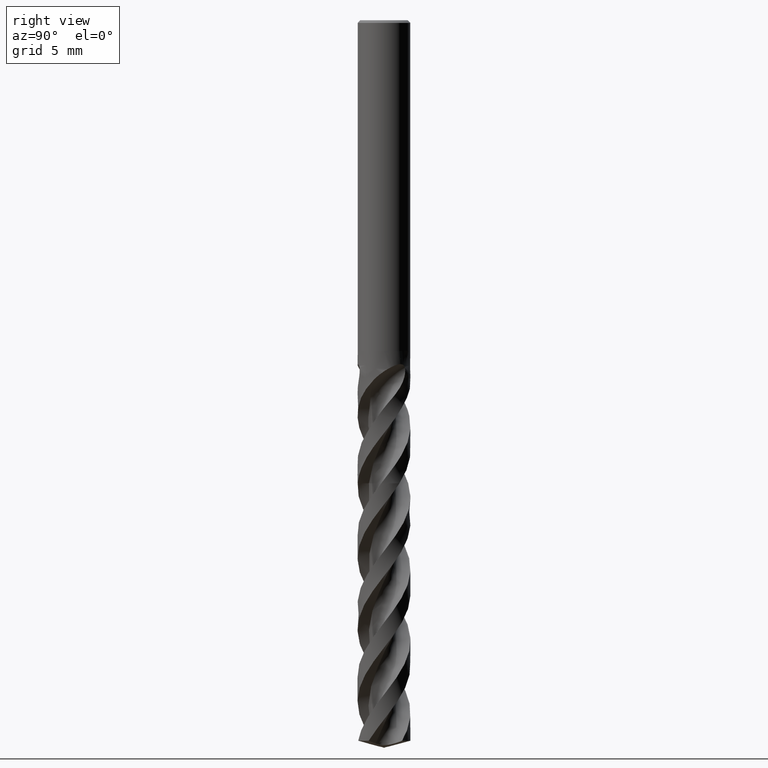
[diagram: clean part render]
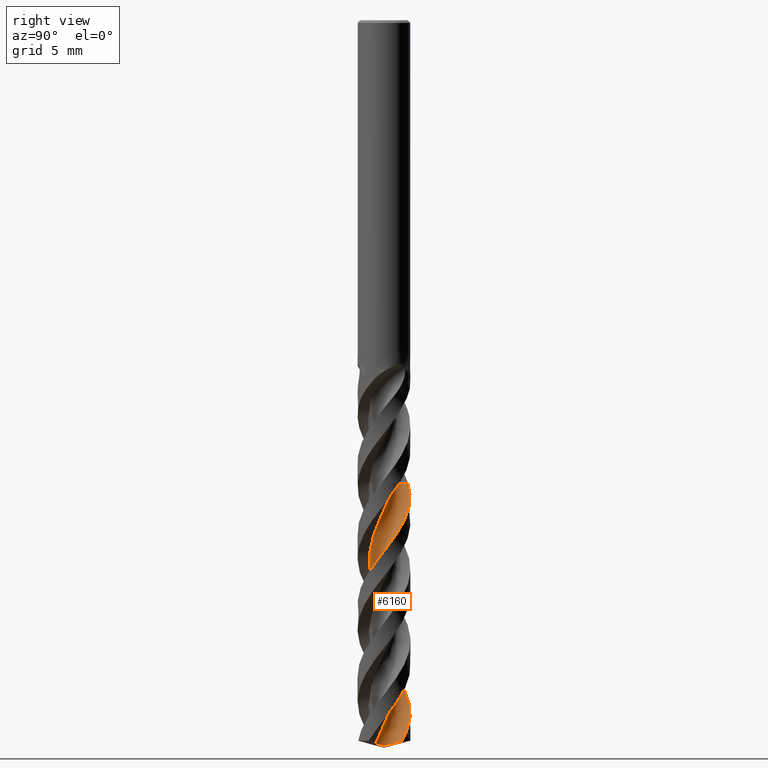
[diagram: same view with one face highlighted and labeled with its STEP entity id]
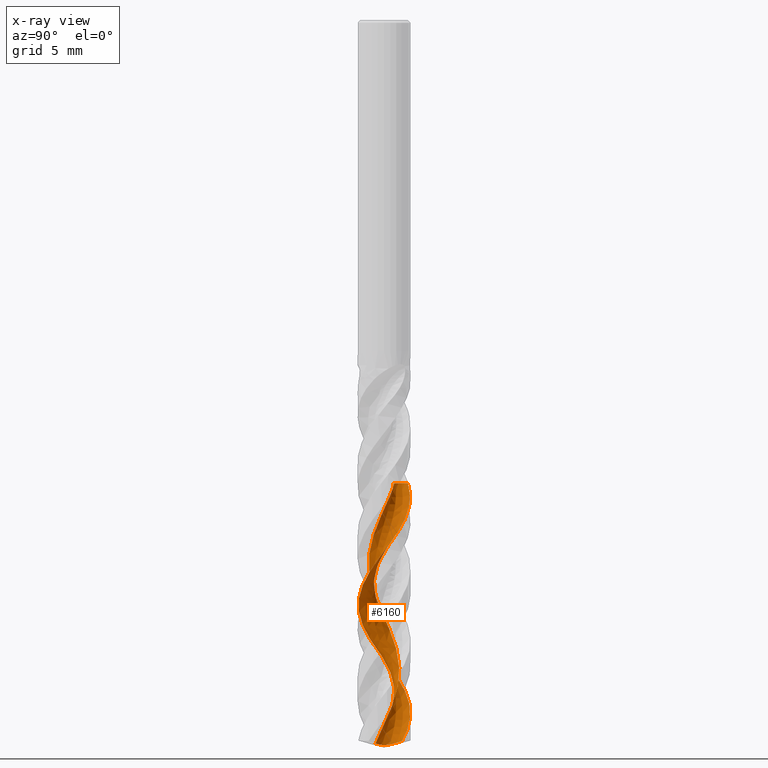
[diagram: x-ray of the same camera — body ghosted, the highlighted face saturated]
A machine part, right view. The second image highlights one B-rep face of the part: STEP entity #6160.
The next image is the same camera in x-ray: the body ghosted, the highlighted face saturated — about 0% of this face is hidden behind the body in this view.
In plain terms, the highlighted face is a freeform B-spline surface patch.
Its self-contained STEP definition (entity closure, byte-faithful):
#3318 = VERTEX_POINT('', #3319);
#3319 = CARTESIAN_POINT('', (0.845246732679933, 0.815334851955939, -35.));
#3325 = EDGE_CURVE('', #3318, #3326, #3328, .T.);
#3326 = VERTEX_POINT('', #3327);
#3327 = CARTESIAN_POINT('', (-0.813128715848013, 1.79923883429345, -35.));
#3328 = B_SPLINE_CURVE_WITH_KNOTS('', 3, (#3329, #3330, #3331, #3332, #3333, #3334, #3335, #3336, #3337, #3338, #3339, #3340, #3341, #3342, #3343, #3344, #3345, #3346, #3347, #3348, #3349, #3350, #3351, #3352, #3353, #3354, #3355, #3356, #3357, #3358, #3359, #3360, #3361, #3362, #3363, #3364, #3365, #3366, #3367, #3368, #3369, #3370, #3371, #3372, #3373, #3374, #3375, #3376, #3377, #3378, #3379, #3380, #3381, #3382, #3383, #3384, #3385, #3386, #3387, #3388, #3389), .UNSPECIFIED., .F., .U., (4, 3, 3, 3, 3, 3, 3, 3, 3, 3, 3, 3, 3, 3, 3, 3, 3, 3, 3, 3, 4), (0., 0.132274041589051, 0.264328185654897, 0.396168736497771, 0.527800426196671, 0.65922654930524, 0.790449055360959, 0.921468604765543, 1.05228459137789, 1.11051912152675, 1.1278036418208, 1.14511366472131, 1.27736103606848, 1.40938935170899, 1.54120471936842, 1.6728116931157, 1.80421340263891, 1.93541164113192, 2.06640691705951, 2.19719847290445, 2.25856731137209), .UNSPECIFIED.);
#3329 = CARTESIAN_POINT('', (0.845246732679933, 0.815334851955939, -35.));
#3330 = CARTESIAN_POINT('', (0.80506794481072, 0.797176881173115, -35.));
#3331 = CARTESIAN_POINT('', (0.763802333756744, 0.781255140503485, -35.));
#3332 = CARTESIAN_POINT('', (0.72183985875828, 0.767720090093811, -35.));
#3333 = CARTESIAN_POINT('', (0.679947143814086, 0.754207540879578, -35.));
#3334 = CARTESIAN_POINT('', (0.637228255843588, 0.743031270271649, -35.));
#3335 = CARTESIAN_POINT('', (0.594085549569306, 0.73429654377372, -35.));
#3336 = CARTESIAN_POINT('', (0.551012625199606, 0.725575945407836, -35.));
#3337 = CARTESIAN_POINT('', (0.507382356399148, 0.719261662498346, -35.));
#3338 = CARTESIAN_POINT('', (0.46360435670892, 0.715412975353446, -35.));
#3339 = CARTESIAN_POINT('', (0.419895709907751, 0.711570385279552, -35.));
#3340 = CARTESIAN_POINT('', (0.375903344626189, 0.710173564398161, -35.));
#3341 = CARTESIAN_POINT('', (0.332038969379219, 0.711235585046873, -35.));
#3342 = CARTESIAN_POINT('', (0.288243096254172, 0.712295947159072, -35.));
#3343 = CARTESIAN_POINT('', (0.244438510642379, 0.715810753134069, -35.));
#3344 = CARTESIAN_POINT('', (0.201033887254562, 0.721747211603226, -35.));
#3345 = CARTESIAN_POINT('', (0.157696510174292, 0.727674472782307, -35.));
#3346 = CARTESIAN_POINT('', (0.114623395665431, 0.736034255097331, -35.));
#3347 = CARTESIAN_POINT('', (0.0722151528729144, 0.746748806909403, -35.));
#3348 = CARTESIAN_POINT('', (0.0298725012293284, 0.757446786948693, -35.));
#3349 = CARTESIAN_POINT('', (-0.0119383060937024, 0.770525324437526, -35.));
#3350 = CARTESIAN_POINT('', (-0.05282959944431, 0.785863155224365, -35.));
#3351 = CARTESIAN_POINT('', (-0.0936573607045512, 0.801177155890614, -35.));
#3352 = CARTESIAN_POINT('', (-0.13369436150909, 0.818790632924275, -35.));
#3353 = CARTESIAN_POINT('', (-0.172570528900521, 0.838540780135945, -35.));
#3354 = CARTESIAN_POINT('', (-0.189876787872805, 0.847332828975133, -35.));
#3355 = CARTESIAN_POINT('', (-0.206970704406642, 0.856555960768251, -35.));
#3356 = CARTESIAN_POINT('', (-0.223820908676993, 0.866193249725934, -35.));
#3357 = CARTESIAN_POINT('', (-0.22882219737848, 0.869053681777897, -35.));
#3358 = CARTESIAN_POINT('', (-0.233802616697628, 0.871950915475758, -35.));
#3359 = CARTESIAN_POINT('', (-0.238761361123096, 0.874884482233548, -35.));
#3360 = CARTESIAN_POINT('', (-0.243727421974209, 0.877822377349732, -35.));
#3361 = CARTESIAN_POINT('', (-0.248672012242668, 0.88079687156482, -35.));
#3362 = CARTESIAN_POINT('', (-0.253594329850421, 0.883807482376442, -35.));
#3363 = CARTESIAN_POINT('', (-0.291200494111614, 0.906808339641333, -35.));
#3364 = CARTESIAN_POINT('', (-0.327569596737345, 0.931964791104027, -35.));
#3365 = CARTESIAN_POINT('', (-0.36235808865232, 0.959039204405914, -35.));
#3366 = CARTESIAN_POINT('', (-0.397088956603941, 0.98606877141197, -35.));
#3367 = CARTESIAN_POINT('', (-0.430353547430099, 1.01509482813567, -35.));
#3368 = CARTESIAN_POINT('', (-0.461838675487016, 1.04584409467078, -35.));
#3369 = CARTESIAN_POINT('', (-0.493273021297553, 1.07654376582783, -35.));
#3370 = CARTESIAN_POINT('', (-0.523032069506918, 1.10905718678689, -35.));
#3371 = CARTESIAN_POINT('', (-0.55083654006389, 1.14307922850596, -35.));
#3372 = CARTESIAN_POINT('', (-0.578597053057359, 1.17704748297322, -35.));
#3373 = CARTESIAN_POINT('', (-0.604495817646654, 1.21262558469349, -35.));
#3374 = CARTESIAN_POINT('', (-0.62829054753105, 1.24948069591217, -35.));
#3375 = CARTESIAN_POINT('', (-0.652048165348908, 1.28627832510242, -35.));
#3376 = CARTESIAN_POINT('', (-0.673782238124256, 1.32446345036237, -35.));
#3377 = CARTESIAN_POINT('', (-0.693290073059273, 1.36367995574659, -35.));
#3378 = CARTESIAN_POINT('', (-0.712767700782482, 1.40283573572031, -35.));
#3379 = CARTESIAN_POINT('', (-0.730086409675924, 1.44314113314458, -35.));
#3380 = CARTESIAN_POINT('', (-0.745085183447288, 1.48422141883528, -35.));
#3381 = CARTESIAN_POINT('', (-0.760060754242471, 1.52523815367143, -35.));
#3382 = CARTESIAN_POINT('', (-0.772769886758511, 1.56715419176109, -35.));
#3383 = CARTESIAN_POINT('', (-0.783094785523402, 1.60958103141189, -35.));
#3384 = CARTESIAN_POINT('', (-0.79340362730292, 1.65194189006286, -35.));
#3385 = CARTESIAN_POINT('', (-0.801367442990936, 1.69494252614745, -35.));
#3386 = CARTESIAN_POINT('', (-0.806912648288109, 1.73818562111873, -35.));
#3387 = CARTESIAN_POINT('', (-0.809514519685339, 1.75847575753456, -35.));
#3388 = CARTESIAN_POINT('', (-0.811587950687894, 1.77884066248169, -35.));
#3389 = CARTESIAN_POINT('', (-0.81312871584801, 1.79923883429345, -35.));
#5859 = EDGE_CURVE('', #5860, #3326, #5862, .T.);
#5860 = VERTEX_POINT('', #5861);
#5861 = CARTESIAN_POINT('', (0.988472577857305, 1.7386552167765, -53.6790702224021));
#5862 = (
   BOUNDED_CURVE ()
   B_SPLINE_CURVE (3, (#5863, #5864, #5865, #5866, #5867, #5868, #5869, #5870, #5871, #5872, #5873, #5874, #5875, #5876, #5877, #5878, #5879, #5880, #5881, #5882, #5883, #5884, #5885, #5886, #5887, #5888, #5889, #5890, #5891, #5892, #5893, #5894, #5895, #5896, #5897, #5898, #5899, #5900, #5901, #5902, #5903, #5904, #5905, #5906, #5907, #5908, #5909, #5910, #5911, #5912, #5913, #5914, #5915, #5916, #5917, #5918, #5919, #5920, #5921, #5922, #5923, #5924, #5925, #5926, #5927, #5928, #5929, #5930, #5931, #5932, #5933, #5934), .UNSPECIFIED., .F., .U.)
   B_SPLINE_CURVE_WITH_KNOTS ((4, 1, 1, 1, 1, 1, 1, 1, 1, 1, 1, 1, 1, 1, 1, 1, 1, 1, 1, 1, 1, 1, 1, 1, 1, 1, 1, 1, 1, 1, 1, 1, 1, 1, 1, 1, 1, 1, 1, 1, 1, 1, 1, 1, 1, 1, 1, 1, 1, 1, 1, 1, 1, 1, 1, 1, 1, 1, 1, 1, 1, 1, 1, 1, 1, 1, 1, 1, 1, 4), (1.37092977759801, 1.62897196261682, 1.90046728971963, 2.17196261682243, 2.44345794392523, 2.71495327102804, 2.98644859813084, 3.25794392523364, 3.52943925233645, 3.80093457943925, 4.07242990654206, 4.34392523364486, 4.61542056074766, 4.88691588785047, 5.15841121495327, 5.42990654205607, 5.70140186915888, 5.97289719626168, 6.24439252336449, 6.51588785046729, 6.78738317757009, 7.0588785046729, 7.3303738317757, 7.6018691588785, 7.87336448598131, 8.14485981308411, 8.41635514018692, 8.68785046728972, 8.95934579439252, 9.23084112149533, 9.50233644859813, 9.77383177570093, 10.0453271028037, 10.3168224299065, 10.5883177570093, 10.8598130841121, 11.131308411215, 11.4028037383178, 11.6742990654206, 11.9457943925234, 12.2172897196262, 12.488785046729, 12.7602803738318, 13.0317757009346, 13.3032710280374, 13.5747663551402, 13.846261682243, 14.1177570093458, 14.3892523364486, 14.6607476635514, 14.9322429906542, 15.203738317757, 15.4752336448598, 15.7467289719626, 16.0182242990654, 16.2897196261682, 16.561214953271, 16.8327102803738, 17.1042056074766, 17.3757009345794, 17.6471962616822, 17.918691588785, 18.1901869158879, 18.4616822429907, 18.7331775700935, 19.0046728971963, 19.2761682242991, 19.5476635514019, 19.8191588785047, 20.05), .UNSPECIFIED.)
   CURVE ()
   GEOMETRIC_REPRESENTATION_ITEM ()
   RATIONAL_B_SPLINE_CURVE ((1., 1., 1., 1., 1., 1., 1., 1., 1., 1., 1., 1., 1., 1., 1., 1., 1., 1., 1., 1., 1., 1., 1., 1., 1., 1., 1., 1., 1., 1., 1., 1., 1., 1., 1., 1., 1., 1., 1., 1., 1., 1., 1., 1., 1., 1., 1., 1., 1., 1., 1., 1., 1., 1., 1., 1., 1., 1., 1., 1., 1., 1., 1., 1., 1., 1., 1., 1., 1., 1., 1., 1.))
   REPRESENTATION_ITEM ('')
);
#5863 = CARTESIAN_POINT('', (0.988472577857254, 1.73865521677653, -53.679070222402));
#5864 = CARTESIAN_POINT('', (0.930048990630125, 1.77051628626188, -53.593056160729));
#5865 = CARTESIAN_POINT('', (0.807010828715041, 1.82987923631505, -53.4165436566885));
#5866 = CARTESIAN_POINT('', (0.613034363042235, 1.90014540916843, -53.1495327102804));
#5867 = CARTESIAN_POINT('', (0.409781283548213, 1.95052424905114, -52.8780373831776));
#5868 = CARTESIAN_POINT('', (0.202738570753133, 1.97936258454763, -52.6065420560748));
#5869 = CARTESIAN_POINT('', (-0.0058316775716487, 1.98642105395989, -52.335046728972));
#5870 = CARTESIAN_POINT('', (-0.213658753558872, 1.97169568812393, -52.0635514018691));
#5871 = CARTESIAN_POINT('', (-0.41848760225895, 1.93541712417399, -51.7920560747664));
#5872 = CARTESIAN_POINT('', (-0.618102837842942, 1.87804733449991, -51.5205607476635));
#5873 = CARTESIAN_POINT('', (-0.810352252653327, 1.80027392310818, -51.2490654205607));
#5874 = CARTESIAN_POINT('', (-0.993169577508559, 1.70300205594633, -50.9775700934579));
#5875 = CARTESIAN_POINT('', (-1.16459625705301, 1.58734411884525, -50.7060747663551));
#5876 = CARTESIAN_POINT('', (-1.32280201594667, 1.45460721913928, -50.4345794392523));
#5877 = CARTESIAN_POINT('', (-1.46610400480533, 1.30627866911646, -50.1630841121495));
#5878 = CARTESIAN_POINT('', (-1.59298433032847, 1.14400960978203, -49.8915887850467));
#5879 = CARTESIAN_POINT('', (-1.70210579143664, 0.969596952118708, -49.6200934579439));
#5880 = CARTESIAN_POINT('', (-1.79232566240276, 0.784963829826443, -49.3485981308411));
#5881 = CARTESIAN_POINT('', (-1.86270738467399, 0.592138772285763, -49.0771028037383));
#5882 = CARTESIAN_POINT('', (-1.9125300511349, 0.393233819063784, -48.8056074766355));
#5883 = CARTESIAN_POINT('', (-1.94129558972934, 0.190421807554935, -48.5341121495327));
#5884 = CARTESIAN_POINT('', (-1.94873357740057, -0.0140869267767705, -48.2626168224299));
#5885 = CARTESIAN_POINT('', (-1.9348036399815, -0.218068192680856, -47.9911214953271));
#5886 = CARTESIAN_POINT('', (-1.89969541871864, -0.419307680164552, -47.7196261682243));
#5887 = CARTESIAN_POINT('', (-1.84382610929132, -0.615624544177966, -47.4481308411215));
#5888 = CARTESIAN_POINT('', (-1.76783560423833, -0.804894588996408, -47.1766355140187));
#5889 = CARTESIAN_POINT('', (-1.67257929437519, -0.985072812034047, -46.9051401869159));
#5890 = CARTESIAN_POINT('', (-1.5591186088305, -1.15421507294988, -46.6336448598131));
#5891 = CARTESIAN_POINT('', (-1.42870939650859, -1.31049866340365, -46.3621495327103));
#5892 = CARTESIAN_POINT('', (-1.28278827386721, -1.45224156458523, -46.0906542056075));
#5893 = CARTESIAN_POINT('', (-1.12295708466461, -1.57792019355239, -45.8191588785047));
#5894 = CARTESIAN_POINT('', (-0.950965636572798, -1.68618545532415, -45.5476635514019));
#5895 = CARTESIAN_POINT('', (-0.768692897084933, -1.77587693542731, -45.2761682242991));
#5896 = CARTESIAN_POINT('', (-0.578126846789456, -1.84603508699881, -45.0046728971963));
#5897 = CARTESIAN_POINT('', (-0.381343201689589, -1.89591128741125, -44.7331775700935));
#5898 = CARTESIAN_POINT('', (-0.18048322768, -1.92497566149862, -44.4616822429907));
#5899 = CARTESIAN_POINT('', (0.0222691205597265, -1.93292259159333, -44.1901869158879));
#5900 = CARTESIAN_POINT('', (0.224710497219909, -1.91967385850817, -43.9186915887851));
#5901 = CARTESIAN_POINT('', (0.424641656194613, -1.88537938206859, -43.6471962616822));
#5902 = CARTESIAN_POINT('', (0.619890889869942, -1.83041555457488, -43.3757009345794));
#5903 = CARTESIAN_POINT('', (0.808337171286145, -1.7553811854017, -43.1042056074766));
#5904 = CARTESIAN_POINT('', (0.987932758225343, -1.66109109957512, -42.8327102803738));
#5905 = CARTESIAN_POINT('', (1.15672502336756, -1.54856745735689, -42.561214953271));
#5906 = CARTESIAN_POINT('', (1.31287728264897, -1.41902888537104, -42.2897196261682));
#5907 = CARTESIAN_POINT('', (1.45468840426806, -1.27387753239096, -42.0182242990654));
#5908 = CARTESIAN_POINT('', (1.58061099331508, -1.11468418434123, -41.7467289719626));
#5909 = CARTESIAN_POINT('', (1.68926796162087, -0.943171593140774, -41.4752336448598));
#5910 = CARTESIAN_POINT('', (1.77946730898968, -0.761196192520769, -41.203738317757));
#5911 = CARTESIAN_POINT('', (1.85021496032884, -0.570728390705108, -40.9322429906542));
#5912 = CARTESIAN_POINT('', (1.90072552313551, -0.37383164467416, -40.6607476635514));
#5913 = CARTESIAN_POINT('', (1.93043085114725, -0.172640533492062, -40.3892523364486));
#5914 = CARTESIAN_POINT('', (1.93898632249584, 0.0306619412651692, -40.1177570093458));
#5915 = CARTESIAN_POINT('', (1.92627476419825, 0.233867591699254, -39.846261682243));
#5916 = CARTESIAN_POINT('', (1.89240797903967, 0.434766574268699, -39.5747663551402));
#5917 = CARTESIAN_POINT('', (1.83772585560861, 0.631170969443859, -39.3032710280374));
#5918 = CARTESIAN_POINT('', (1.7627930671862, 0.820938163937987, -39.0317757009346));
#5919 = CARTESIAN_POINT('', (1.66839339011947, 1.00199379074074, -38.7602803738318));
#5920 = CARTESIAN_POINT('', (1.55552169697172, 1.17235398630889, -38.488785046729));
#5921 = CARTESIAN_POINT('', (1.42537370389249, 1.33014673086239, -38.2172897196262));
#5922 = CARTESIAN_POINT('', (1.27933357504054, 1.47363204673345, -37.9457943925234));
#5923 = CARTESIAN_POINT('', (1.11895950928888, 1.6012208410348, -37.6742990654206));
#5924 = CARTESIAN_POINT('', (0.945967455611472, 1.71149219244624, -37.4028037383178));
#5925 = CARTESIAN_POINT('', (0.762213123281211, 1.80320889753244, -37.1313084112149));
#5926 = CARTESIAN_POINT('', (0.569672471093413, 1.87533110955104, -36.8598130841121));
#5927 = CARTESIAN_POINT('', (0.37042087608151, 1.92702792201561, -36.5883177570093));
#5928 = CARTESIAN_POINT('', (0.166611196441416, 1.95768677015526, -36.3168224299065));
#5929 = CARTESIAN_POINT('', (-0.039549044523245, 1.96692054565438, -36.0453271028037));
#5930 = CARTESIAN_POINT('', (-0.245821116810462, 1.95457234344409, -35.7738317757009));
#5931 = CARTESIAN_POINT('', (-0.449958940437976, 1.92071778361787, -35.5023364485981));
#5932 = CARTESIAN_POINT('', (-0.639761576198268, 1.86841278409759, -35.2443925233645));
#5933 = CARTESIAN_POINT('', (-0.759234108962014, 1.82267034483981, -35.0769470404984));
#5934 = CARTESIAN_POINT('', (-0.813128715848013, 1.79923883429345, -35.));
#6160 = ADVANCED_FACE('', (#6161), #6364, .T.);
#6161 = FACE_OUTER_BOUND('', #6162, .T.);
#6162 = EDGE_LOOP('', (#6163, #6164, #6245, #6347, #6363));
#6163 = ORIENTED_EDGE('', *, *, #3325, .F.);
#6164 = ORIENTED_EDGE('', *, *, #6165, .F.);
#6165 = EDGE_CURVE('', #6166, #3318, #6168, .T.);
#6166 = VERTEX_POINT('', #6167);
#6167 = CARTESIAN_POINT('', (1.01463603508309, -0.637199730760375, -54.6789626732717));
#6168 = (
   BOUNDED_CURVE ()
   B_SPLINE_CURVE (3, (#6169, #6170, #6171, #6172, #6173, #6174, #6175, #6176, #6177, #6178, #6179, #6180, #6181, #6182, #6183, #6184, #6185, #6186, #6187, #6188, #6189, #6190, #6191, #6192, #6193, #6194, #6195, #6196, #6197, #6198, #6199, #6200, #6201, #6202, #6203, #6204, #6205, #6206, #6207, #6208, #6209, #6210, #6211, #6212, #6213, #6214, #6215, #6216, #6217, #6218, #6219, #6220, #6221, #6222, #6223, #6224, #6225, #6226, #6227, #6228, #6229, #6230, #6231, #6232, #6233, #6234, #6235, #6236, #6237, #6238, #6239, #6240, #6241, #6242, #6243, #6244), .UNSPECIFIED., .F., .U.)
   B_SPLINE_CURVE_WITH_KNOTS ((4, 1, 1, 1, 1, 1, 1, 1, 1, 1, 1, 1, 1, 1, 1, 1, 1, 1, 1, 1, 1, 1, 1, 1, 1, 1, 1, 1, 1, 1, 1, 1, 1, 1, 1, 1, 1, 1, 1, 1, 1, 1, 1, 1, 1, 1, 1, 1, 1, 1, 1, 1, 1, 1, 1, 1, 1, 1, 1, 1, 1, 1, 1, 1, 1, 1, 1, 1, 1, 1, 1, 1, 1, 4), (0.371037326728305, 0.542990654205607, 0.814485981308411, 1.08598130841121, 1.35747663551402, 1.62897196261682, 1.90046728971963, 2.17196261682243, 2.44345794392523, 2.71495327102804, 2.98644859813084, 3.25794392523364, 3.52943925233645, 3.80093457943925, 4.07242990654206, 4.34392523364486, 4.61542056074766, 4.88691588785047, 5.15841121495327, 5.42990654205607, 5.70140186915888, 5.97289719626168, 6.24439252336449, 6.51588785046729, 6.78738317757009, 7.0588785046729, 7.3303738317757, 7.6018691588785, 7.87336448598131, 8.14485981308411, 8.41635514018692, 8.68785046728972, 8.95934579439252, 9.23084112149533, 9.50233644859813, 9.77383177570093, 10.0453271028037, 10.3168224299065, 10.5883177570093, 10.8598130841121, 11.131308411215, 11.4028037383178, 11.6742990654206, 11.9457943925234, 12.2172897196262, 12.488785046729, 12.7602803738318, 13.0317757009346, 13.3032710280374, 13.5747663551402, 13.846261682243, 14.1177570093458, 14.3892523364486, 14.6607476635514, 14.9322429906542, 15.203738317757, 15.4752336448598, 15.7467289719626, 16.0182242990654, 16.2897196261682, 16.561214953271, 16.8327102803738, 17.1042056074766, 17.3757009345794, 17.6471962616822, 17.918691588785, 18.1901869158879, 18.4616822429907, 18.7331775700935, 19.0046728971963, 19.2761682242991, 19.5476635514019, 19.8191588785047, 20.05), .UNSPECIFIED.)
   CURVE ()
   GEOMETRIC_REPRESENTATION_ITEM ()
   RATIONAL_B_SPLINE_CURVE ((1., 1., 1., 1., 1., 1., 1., 1., 1., 1., 1., 1., 1., 1., 1., 1., 1., 1., 1., 1., 1., 1., 1., 1., 1., 1., 1., 1., 1., 1., 1., 1., 1., 1., 1., 1., 1., 1., 1., 1., 1., 1., 1., 1., 1., 1., 1., 1., 1., 1., 1., 1., 1., 1., 1., 1., 1., 1., 1., 1., 1., 1., 1., 1., 1., 1., 1., 1., 1., 1., 1., 1., 1., 1., 1., 1.))
   REPRESENTATION_ITEM ('')
);
#6169 = CARTESIAN_POINT('', (1.01463603508309, -0.637199730760377, -54.6789626732717));
#6170 = CARTESIAN_POINT('', (1.02832885465046, -0.614434023910793, -54.6216448974459));
#6171 = CARTESIAN_POINT('', (1.06167654359752, -0.554593388709621, -54.4738286792526));
#6172 = CARTESIAN_POINT('', (1.1069685083306, -0.453959401881144, -54.2355140186916));
#6173 = CARTESIAN_POINT('', (1.14624120546526, -0.334788345517015, -53.9640186915888));
#6174 = CARTESIAN_POINT('', (1.17280795348086, -0.212402866414724, -53.692523364486));
#6175 = CARTESIAN_POINT('', (1.18642885771552, -0.0881451263928729, -53.4210280373832));
#6176 = CARTESIAN_POINT('', (1.18700378396389, 0.0366280560866794, -53.1495327102804));
#6177 = CARTESIAN_POINT('', (1.17457368282679, 0.160559294804062, -52.8780373831776));
#6178 = CARTESIAN_POINT('', (1.14931939619103, 0.282305256487765, -52.6065420560748));
#6179 = CARTESIAN_POINT('', (1.11155926131862, 0.400550918468843, -52.335046728972));
#6180 = CARTESIAN_POINT('', (1.06174519639219, 0.514023513501919, -52.0635514018691));
#6181 = CARTESIAN_POINT('', (1.00045740748964, 0.62150596383402, -51.7920560747664));
#6182 = CARTESIAN_POINT('', (0.928397753016602, 0.721849680057139, -51.5205607476635));
#6183 = CARTESIAN_POINT('', (0.846381846911506, 0.813986589352102, -51.2490654205607));
#6184 = CARTESIAN_POINT('', (0.755329986226489, 0.896940271102905, -50.9775700934579));
#6185 = CARTESIAN_POINT('', (0.656257002788029, 0.969836086296518, -50.7060747663551));
#6186 = CARTESIAN_POINT('', (0.550261148791135, 1.03191019832775, -50.4345794392523));
#6187 = CARTESIAN_POINT('', (0.438512135933245, 1.0825173945946, -50.1630841121495));
#6188 = CARTESIAN_POINT('', (0.322238455977285, 1.12113763103316, -49.8915887850467));
#6189 = CARTESIAN_POINT('', (0.202714117631612, 1.14738123521922, -49.6200934579439));
#6190 = CARTESIAN_POINT('', (0.0812449402125981, 1.16099271775819, -49.3485981308411));
#6191 = CARTESIAN_POINT('', (-0.0408454513182128, 1.16185315623925, -49.0771028037383));
#6192 = CARTESIAN_POINT('', (-0.162229782717019, 1.14998113089857, -48.8056074766355));
#6193 = CARTESIAN_POINT('', (-0.281591289874283, 1.12553220616839, -48.5341121495327));
#6194 = CARTESIAN_POINT('', (-0.397637733335558, 1.08879696733125, -48.2626168224299));
#6195 = CARTESIAN_POINT('', (-0.509115121883423, 1.04019763640033, -47.9911214953271));
#6196 = CARTESIAN_POINT('', (-0.614821002528085, 0.980283305958484, -47.7196261682243));
#6197 = CARTESIAN_POINT('', (-0.713617179090528, 0.909723843863338, -47.4481308411215));
#6198 = CARTESIAN_POINT('', (-0.804441727791261, 0.829302535323279, -47.1766355140187));
#6199 = CARTESIAN_POINT('', (-0.886320185812381, 0.739907541733182, -46.9051401869159));
#6200 = CARTESIAN_POINT('', (-0.958375797601924, 0.642522267702949, -46.6336448598131));
#6201 = CARTESIAN_POINT('', (-1.0198387136449, 0.538214738796358, -46.3621495327103));
#6202 = CARTESIAN_POINT('', (-1.07005404743268, 0.428126102514031, -46.0906542056075));
#6203 = CARTESIAN_POINT('', (-1.10848870830789, 0.31345837390405, -45.8191588785047));
#6204 = CARTESIAN_POINT('', (-1.1347369406246, 0.195461554780506, -45.5476635514019));
#6205 = CARTESIAN_POINT('', (-1.14852451311215, 0.0754202618002454, -45.2761682242991));
#6206 = CARTESIAN_POINT('', (-1.14971151633084, -0.0453599964690504, -45.0046728971963));
#6207 = CARTESIAN_POINT('', (-1.1382937405157, -0.165566749907787, -44.7331775700935));
#6208 = CARTESIAN_POINT('', (-1.11440262077725, -0.283894559066157, -44.4616822429907));
#6209 = CARTESIAN_POINT('', (-1.07830375141566, -0.399058923186842, -44.1901869158879));
#6210 = CARTESIAN_POINT('', (-1.03039398586125, -0.509809958956218, -43.9186915887851));
#6211 = CARTESIAN_POINT('', (-0.971197153328753, -0.614945707377976, -43.6471962616822));
#6212 = CARTESIAN_POINT('', (-0.90135843752172, -0.71332493007854, -43.3757009345794));
#6213 = CARTESIAN_POINT('', (-0.821637476502587, -0.803879261680076, -43.1042056074766));
#6214 = CARTESIAN_POINT('', (-0.732900256015375, -0.885624591557978, -42.8327102803738));
#6215 = CARTESIAN_POINT('', (-0.636109880980519, -0.957671556269592, -42.561214953271));
#6216 = CARTESIAN_POINT('', (-0.53231632144951, -1.01923503311827, -42.2897196261682));
#6217 = CARTESIAN_POINT('', (-0.422645239895298, -1.06964253560999, -42.0182242990654));
#6218 = CARTESIAN_POINT('', (-0.308286016216083, -1.10834142286533, -41.7467289719626));
#6219 = CARTESIAN_POINT('', (-0.190479095149772, -1.13490484725462, -41.4752336448598));
#6220 = CARTESIAN_POINT('', (-0.0705027878497229, -1.14903637750601, -41.203738317757));
#6221 = CARTESIAN_POINT('', (0.0503403349121562, -1.15057324816553, -40.9322429906542));
#6222 = CARTESIAN_POINT('', (0.170737316129356, -1.13948820042849, -40.6607476635514));
#6223 = CARTESIAN_POINT('', (0.289378807868099, -1.11588989387112, -40.3892523364486));
#6224 = CARTESIAN_POINT('', (0.404973042427179, -1.08002188334465, -40.1177570093458));
#6225 = CARTESIAN_POINT('', (0.516259633360263, -1.03226017010394, -39.846261682243));
#6226 = CARTESIAN_POINT('', (0.622023061939575, -0.973109350979679, -39.5747663551402));
#6227 = CARTESIAN_POINT('', (0.721105707684697, -0.903197403919254, -39.3032710280374));
#6228 = CARTESIAN_POINT('', (0.812420286071972, -0.823269162370475, -39.0317757009346));
#6229 = CARTESIAN_POINT('', (0.894961562436685, -0.734178544620576, -38.7602803738318));
#6230 = CARTESIAN_POINT('', (0.967817218325291, -0.63687961719291, -38.488785046729));
#6231 = CARTESIAN_POINT('', (1.03017775507838, -0.532416583612652, -38.2172897196262));
#6232 = CARTESIAN_POINT('', (1.08134532914424, -0.421912801155838, -37.9457943925234));
#6233 = CARTESIAN_POINT('', (1.12074142444262, -0.306558938477445, -37.6742990654206));
#6234 = CARTESIAN_POINT('', (1.14791327891263, -0.18760039616692, -37.4028037383178));
#6235 = CARTESIAN_POINT('', (1.16253899507147, -0.0663241202086056, -37.1313084112149));
#6236 = CARTESIAN_POINT('', (1.16443127785613, 0.0559550550540813, -36.8598130841121));
#6237 = CARTESIAN_POINT('', (1.15353975708504, 0.177908392609109, -36.5883177570093));
#6238 = CARTESIAN_POINT('', (1.12995186642119, 0.298207421472319, -36.3168224299065));
#6239 = CARTESIAN_POINT('', (1.09389226559675, 0.415538140414211, -36.0453271028037));
#6240 = CARTESIAN_POINT('', (1.04572080772252, 0.528615107922272, -35.7738317757009));
#6241 = CARTESIAN_POINT('', (0.985929068602547, 0.636195270307196, -35.5023364485981));
#6242 = CARTESIAN_POINT('', (0.918669057490362, 0.732055259468282, -35.2443925233645));
#6243 = CARTESIAN_POINT('', (0.869151190310098, 0.789831226056872, -35.0769470404984));
#6244 = CARTESIAN_POINT('', (0.845246732679933, 0.815334851955939, -35.));
#6245 = ORIENTED_EDGE('', *, *, #6246, .T.);
#6246 = EDGE_CURVE('', #6166, #6247, #6249, .T.);
#6247 = VERTEX_POINT('', #6248);
#6248 = CARTESIAN_POINT('', (1.46036371560902, 1.36650569634109, -54.4641016151378));
#6249 = B_SPLINE_CURVE_WITH_KNOTS('', 3, (#6250, #6251, #6252, #6253, #6254, #6255, #6256, #6257, #6258, #6259, #6260, #6261, #6262, #6263, #6264, #6265, #6266, #6267, #6268, #6269, #6270, #6271, #6272, #6273, #6274, #6275, #6276, #6277, #6278, #6279, #6280, #6281, #6282, #6283, #6284, #6285, #6286, #6287, #6288, #6289, #6290, #6291, #6292, #6293, #6294, #6295, #6296, #6297, #6298, #6299, #6300, #6301, #6302, #6303, #6304, #6305, #6306, #6307, #6308, #6309, #6310, #6311, #6312, #6313, #6314, #6315, #6316, #6317, #6318, #6319, #6320, #6321, #6322, #6323, #6324, #6325, #6326, #6327, #6328, #6329, #6330, #6331, #6332, #6333, #6334, #6335, #6336, #6337, #6338, #6339, #6340, #6341, #6342, #6343, #6344, #6345, #6346), .UNSPECIFIED., .F., .U., (4, 3, 3, 3, 3, 3, 3, 3, 3, 3, 3, 3, 3, 3, 3, 3, 3, 3, 3, 3, 3, 3, 3, 3, 3, 3, 3, 3, 3, 3, 3, 3, 4), (0., 0.0877128547019551, 0.175289113475142, 0.262663260976704, 0.349765029311863, 0.407799331058787, 0.465737310059897, 0.523589335343046, 0.581378049035354, 0.639136817325631, 0.696904495922344, 0.714155385730511, 0.731479580310729, 0.790257588717649, 0.849083164719894, 0.907920650272621, 0.966737466779173, 1.02550859141262, 1.08421780983834, 1.14285674615756, 1.16886493976956, 1.25742174833516, 1.3457398900594, 1.43384795258848, 1.52177546022814, 1.60954885330344, 1.69719022568245, 1.78471733896309, 1.87214412819987, 2.00295734208575, 2.13350638055701, 2.2638173855583, 2.34527797993861), .UNSPECIFIED.);
#6250 = CARTESIAN_POINT('', (1.01463603508309, -0.637199730760341, -54.6789626732717));
#6251 = CARTESIAN_POINT('', (0.994731136261581, -0.617096323174362, -54.6863441586462));
#6252 = CARTESIAN_POINT('', (0.97576300423979, -0.5959858738534, -54.6936438506158));
#6253 = CARTESIAN_POINT('', (0.957882056251355, -0.573982979131978, -54.7007840637015));
#6254 = CARTESIAN_POINT('', (0.940028954405951, -0.552014349694136, -54.7079131572764));
#6255 = CARTESIAN_POINT('', (0.923218682496625, -0.529104848584897, -54.7148999502427));
#6256 = CARTESIAN_POINT('', (0.907587400163095, -0.505392557483356, -54.7216503697411));
#6257 = CARTESIAN_POINT('', (0.89199219219942, -0.481734990360378, -54.7283852104069));
#6258 = CARTESIAN_POINT('', (0.877533320129004, -0.457220837278709, -54.7349010559988));
#6259 = CARTESIAN_POINT('', (0.86432425839252, -0.432011626884921, -54.7410869651289));
#6260 = CARTESIAN_POINT('', (0.851156374433761, -0.4068810033948, -54.7472535903768));
#6261 = CARTESIAN_POINT('', (0.839198215460914, -0.380996697140123, -54.7531073724627));
#6262 = CARTESIAN_POINT('', (0.828530784316225, -0.354542283515688, -54.758523882821));
#6263 = CARTESIAN_POINT('', (0.821423271693367, -0.336916195639827, -54.7621328037713));
#6264 = CARTESIAN_POINT('', (0.814877583601357, -0.319012647730256, -54.7655525043568));
#6265 = CARTESIAN_POINT('', (0.808907568390398, -0.300891136212987, -54.7687446444896));
#6266 = CARTESIAN_POINT('', (0.802947461944435, -0.282799701972347, -54.7719314864506));
#6267 = CARTESIAN_POINT('', (0.797554373112965, -0.264470429470507, -54.7748949761221));
#6268 = CARTESIAN_POINT('', (0.79273262075904, -0.245965788379284, -54.7775982677706));
#6269 = CARTESIAN_POINT('', (0.787918021701606, -0.227488599793805, -54.7802975489588));
#6270 = CARTESIAN_POINT('', (0.783667637533725, -0.208815790388569, -54.7827402293337));
#6271 = CARTESIAN_POINT('', (0.779975625277632, -0.190011445416631, -54.7848939787892));
#6272 = CARTESIAN_POINT('', (0.776287653453454, -0.17122767937843, -54.7870453712434));
#6273 = CARTESIAN_POINT('', (0.773152715458101, -0.152292143880788, -54.7889106132559));
#6274 = CARTESIAN_POINT('', (0.770554988026397, -0.13326861608584, -54.7904651854385));
#6275 = CARTESIAN_POINT('', (0.767958606705159, -0.114254946049467, -54.792018952061));
#6276 = CARTESIAN_POINT('', (0.765896011990602, -0.0951335699294839, -54.7932638502648));
#6277 = CARTESIAN_POINT('', (0.764342627110042, -0.0759655839262676, -54.7941859906704));
#6278 = CARTESIAN_POINT('', (0.762789002592529, -0.0567946409238957, -54.7951082733325));
#6279 = CARTESIAN_POINT('', (0.761743015750724, -0.0375584450658377, -54.7957085679966));
#6280 = CARTESIAN_POINT('', (0.761173591458028, -0.0183129604385668, -54.7959851317085));
#6281 = CARTESIAN_POINT('', (0.761003546963147, -0.0125657719990315, -54.7960677206273));
#6282 = CARTESIAN_POINT('', (0.760875919221889, -0.00681669423216845, -54.7961215505317));
#6283 = CARTESIAN_POINT('', (0.760789809240752, -0.00106709778213244, -54.7961467844803));
#6284 = CARTESIAN_POINT('', (0.760703333349647, 0.00470693061673876, -54.7961721256563));
#6285 = CARTESIAN_POINT('', (0.760658721584696, 0.010481928319126, -54.7961686295506));
#6286 = CARTESIAN_POINT('', (0.760655043003073, 0.0162565695907498, -54.7961365537339));
#6287 = CARTESIAN_POINT('', (0.7606425622092, 0.0358489328396609, -54.7960277260126));
#6288 = CARTESIAN_POINT('', (0.761101457702607, 0.0554470838157742, -54.7955889444706));
#6289 = CARTESIAN_POINT('', (0.761994700668802, 0.0750049464232209, -54.7948373966331));
#6290 = CARTESIAN_POINT('', (0.762888666514541, 0.0945786367274399, -54.7940852405865));
#6291 = CARTESIAN_POINT('', (0.764218151472045, 0.114126657316859, -54.7930195011068));
#6292 = CARTESIAN_POINT('', (0.765947345589519, 0.13361182549399, -54.7916658487916));
#6293 = CARTESIAN_POINT('', (0.767676889791531, 0.153100938546969, -54.7903119224224));
#6294 = CARTESIAN_POINT('', (0.769807285914689, 0.172539755964099, -54.7886693525119));
#6295 = CARTESIAN_POINT('', (0.77230615604687, 0.191899324899458, -54.7867686405265));
#6296 = CARTESIAN_POINT('', (0.774804148349864, 0.211252093003333, -54.784868596243));
#6297 = CARTESIAN_POINT('', (0.777671655820458, 0.230536296130171, -54.7827097638573));
#6298 = CARTESIAN_POINT('', (0.780880882578951, 0.249729772290523, -54.7803241604532));
#6299 = CARTESIAN_POINT('', (0.784087616248042, 0.268908337989392, -54.7779404103062));
#6300 = CARTESIAN_POINT('', (0.787637009215654, 0.288005255869836, -54.775329281965));
#6301 = CARTESIAN_POINT('', (0.791506094110591, 0.307003449854326, -54.7725218640665));
#6302 = CARTESIAN_POINT('', (0.795371103528416, 0.325981632206392, -54.7697174033446));
#6303 = CARTESIAN_POINT('', (0.799556677297781, 0.344868858728073, -54.766716039183));
#6304 = CARTESIAN_POINT('', (0.80404433448738, 0.363651546535512, -54.7635464532786));
#6305 = CARTESIAN_POINT('', (0.808526619403101, 0.382411749171112, -54.7603806617557));
#6306 = CARTESIAN_POINT('', (0.813311835126221, 0.401074148349795, -54.7570459992568));
#6307 = CARTESIAN_POINT('', (0.818385357857525, 0.419627358278595, -54.7535680565612));
#6308 = CARTESIAN_POINT('', (0.820635623121075, 0.427856284419503, -54.7520254807118));
#6309 = CARTESIAN_POINT('', (0.822942865419092, 0.436064570489228, -54.7504545283155));
#6310 = CARTESIAN_POINT('', (0.825306011870849, 0.44425130646505, -54.7488572329923));
#6311 = CARTESIAN_POINT('', (0.83335242643784, 0.472126799142617, -54.743418509401));
#6312 = CARTESIAN_POINT('', (0.842049554751071, 0.4997637669857, -54.7376732137905));
#6313 = CARTESIAN_POINT('', (0.851363828260118, 0.527128510663256, -54.7316913490174));
#6314 = CARTESIAN_POINT('', (0.860652999145504, 0.554419504427686, -54.7257256057916));
#6315 = CARTESIAN_POINT('', (0.870561713857293, 0.581455996795033, -54.7195208873438));
#6316 = CARTESIAN_POINT('', (0.881066680132626, 0.60820507592409, -54.7131326498775));
#6317 = CARTESIAN_POINT('', (0.891546658621563, 0.634890527978291, -54.7067596078824));
#6318 = CARTESIAN_POINT('', (0.902625959833418, 0.661304589822534, -54.7002002603015));
#6319 = CARTESIAN_POINT('', (0.914287928128145, 0.687412918820976, -54.6934985726679));
#6320 = CARTESIAN_POINT('', (0.925925998208162, 0.713467745491481, -54.6868106184253));
#6321 = CARTESIAN_POINT('', (0.938150607142337, 0.739231844754741, -54.6799772310448));
#6322 = CARTESIAN_POINT('', (0.950949138814712, 0.764668283541159, -54.6730337039249));
#6323 = CARTESIAN_POINT('', (0.963725237915235, 0.790060138717881, -54.6661023470426));
#6324 = CARTESIAN_POINT('', (0.977080029866368, 0.815138778220745, -54.6590574866766));
#6325 = CARTESIAN_POINT('', (0.991003074681746, 0.83986404163152, -54.6519280478411));
#6326 = CARTESIAN_POINT('', (1.00490517772871, 0.864552115566337, -54.6448093324543));
#6327 = CARTESIAN_POINT('', (1.01938129536814, 0.888901008197276, -54.6376024121273));
#6328 = CARTESIAN_POINT('', (1.03442176487921, 0.912866935216373, -54.6303316355869));
#6329 = CARTESIAN_POINT('', (1.04944262595149, 0.936801617571694, -54.6230703380444));
#6330 = CARTESIAN_POINT('', (1.06503469670268, 0.960367494773348, -54.6157412846816));
#6331 = CARTESIAN_POINT('', (1.08118795880881, 0.983516866433967, -54.6083656190266));
#6332 = CARTESIAN_POINT('', (1.0973227059598, 1.00663970416138, -54.6009984073989));
#6333 = CARTESIAN_POINT('', (1.11402672328073, 1.02936031429039, -54.5935803884111));
#6334 = CARTESIAN_POINT('', (1.13128863086446, 1.05162683561797, -54.5861305513726));
#6335 = CARTESIAN_POINT('', (1.15711693393427, 1.08494334240437, -54.5749836576751));
#6336 = CARTESIAN_POINT('', (1.18422544995816, 1.11728236825256, -54.5637527158031));
#6337 = CARTESIAN_POINT('', (1.21256545844694, 1.14845099478432, -54.5524963957118));
#6338 = CARTESIAN_POINT('', (1.24084823469388, 1.17955667672054, -54.541262807598));
#6339 = CARTESIAN_POINT('', (1.27040104231233, 1.20954375816835, -54.5299866627873));
#6340 = CARTESIAN_POINT('', (1.30115565002439, 1.23819664155597, -54.5187243912173));
#6341 = CARTESIAN_POINT('', (1.33185418205733, 1.26679728139329, -54.5074826544411));
#6342 = CARTESIAN_POINT('', (1.36380305830516, 1.2941169677955, -54.4962354469108));
#6343 = CARTESIAN_POINT('', (1.39690558270544, 1.3199175106718, -54.4850404489454));
#6344 = CARTESIAN_POINT('', (1.41759877982343, 1.33604606065894, -54.4780421820812));
#6345 = CARTESIAN_POINT('', (1.43876189638403, 1.351596310909, -54.471057612763));
#6346 = CARTESIAN_POINT('', (1.46036371560904, 1.36650569634108, -54.4641016151378));
#6347 = ORIENTED_EDGE('', *, *, #6348, .F.);
#6348 = EDGE_CURVE('', #5860, #6247, #6349, .T.);
#6349 = B_SPLINE_CURVE_WITH_KNOTS('', 3, (#6350, #6351, #6352, #6353, #6354, #6355, #6356, #6357, #6358, #6359, #6360, #6361, #6362), .UNSPECIFIED., .F., .U., (4, 3, 3, 3, 4), (0., 0.295839934085422, 0.591566447924771, 0.887181032300978, 0.989938361460351), .UNSPECIFIED.);
#6350 = CARTESIAN_POINT('', (0.988472577857313, 1.7386552167765, -53.6790702224021));
#6351 = CARTESIAN_POINT('', (1.04071309193384, 1.70895506972057, -53.7572585535751));
#6352 = CARTESIAN_POINT('', (1.09163191204994, 1.67688715463462, -53.8354773821738));
#6353 = CARTESIAN_POINT('', (1.14098370170798, 1.64260652392372, -53.9136683304566));
#6354 = CARTESIAN_POINT('', (1.19031657068804, 1.60833903585221, -53.9918293015943));
#6355 = CARTESIAN_POINT('', (1.23812143234055, 1.57183425701512, -54.0700205935247));
#6356 = CARTESIAN_POINT('', (1.28416809665914, 1.53326850209703, -54.1481839952064));
#6357 = CARTESIAN_POINT('', (1.33019733278588, 1.49471734392303, -54.2263178128395));
#6358 = CARTESIAN_POINT('', (1.37450473245894, 1.45407746094208, -54.3044821044892));
#6359 = CARTESIAN_POINT('', (1.41687765310304, 1.41154444355721, -54.3826182284084));
#6360 = CARTESIAN_POINT('', (1.4316067239412, 1.39675972217148, -54.4097787943247));
#6361 = CARTESIAN_POINT('', (1.44610486458209, 1.38174391212151, -54.4369407645928));
#6362 = CARTESIAN_POINT('', (1.46036371560905, 1.36650569634108, -54.4641016151378));
#6363 = ORIENTED_EDGE('', *, *, #5859, .T.);
#6364 = (
   BOUNDED_SURFACE ()
   B_SPLINE_SURFACE (3, 2, ((#6365, #6366, #6367, #6368, #6369), (#6370, #6371, #6372, #6373, #6374), (#6375, #6376, #6377, #6378, #6379), (#6380, #6381, #6382, #6383, #6384), (#6385, #6386, #6387, #6388, #6389), (#6390, #6391, #6392, #6393, #6394), (#6395, #6396, #6397, #6398, #6399), (#6400, #6401, #6402, #6403, #6404), (#6405, #6406, #6407, #6408, #6409), (#6410, #6411, #6412, #6413, #6414), (#6415, #6416, #6417, #6418, #6419), (#6420, #6421, #6422, #6423, #6424), (#6425, #6426, #6427, #6428, #6429), (#6430, #6431, #6432, #6433, #6434), (#6435, #6436, #6437, #6438, #6439), (#6440, #6441, #6442, #6443, #6444), (#6445, #6446, #6447, #6448, #6449), (#6450, #6451, #6452, #6453, #6454), (#6455, #6456, #6457, #6458, #6459), (#6460, #6461, #6462, #6463, #6464), (#6465, #6466, #6467, #6468, #6469), (#6470, #6471, #6472, #6473, #6474), (#6475, #6476, #6477, #6478, #6479), (#6480, #6481, #6482, #6483, #6484), (#6485, #6486, #6487, #6488, #6489), (#6490, #6491, #6492, #6493, #6494), (#6495, #6496, #6497, #6498, #6499), (#6500, #6501, #6502, #6503, #6504), (#6505, #6506, #6507, #6508, #6509), (#6510, #6511, #6512, #6513, #6514), (#6515, #6516, #6517, #6518, #6519), (#6520, #6521, #6522, #6523, #6524), (#6525, #6526, #6527, #6528, #6529), (#6530, #6531, #6532, #6533, #6534), (#6535, #6536, #6537, #6538, #6539), (#6540, #6541, #6542, #6543, #6544), (#6545, #6546, #6547, #6548, #6549), (#6550, #6551, #6552, #6553, #6554), (#6555, #6556, #6557, #6558, #6559), (#6560, #6561, #6562, #6563, #6564), (#6565, #6566, #6567, #6568, #6569), (#6570, #6571, #6572, #6573, #6574), (#6575, #6576, #6577, #6578, #6579), (#6580, #6581, #6582, #6583, #6584), (#6585, #6586, #6587, #6588, #6589), (#6590, #6591, #6592, #6593, #6594), (#6595, #6596, #6597, #6598, #6599), (#6600, #6601, #6602, #6603, #6604), (#6605, #6606, #6607, #6608, #6609), (#6610, #6611, #6612, #6613, #6614), (#6615, #6616, #6617, #6618, #6619), (#6620, #6621, #6622, #6623, #6624), (#6625, #6626, #6627, #6628, #6629), (#6630, #6631, #6632, #6633, #6634), (#6635, #6636, #6637, #6638, #6639), (#6640, #6641, #6642, #6643, #6644), (#6645, #6646, #6647, #6648, #6649), (#6650, #6651, #6652, #6653, #6654), (#6655, #6656, #6657, #6658, #6659), (#6660, #6661, #6662, #6663, #6664), (#6665, #6666, #6667, #6668, #6669), (#6670, #6671, #6672, #6673, #6674), (#6675, #6676, #6677, #6678, #6679), (#6680, #6681, #6682, #6683, #6684), (#6685, #6686, #6687, #6688, #6689), (#6690, #6691, #6692, #6693, #6694), (#6695, #6696, #6697, #6698, #6699), (#6700, #6701, #6702, #6703, #6704), (#6705, #6706, #6707, #6708, #6709), (#6710, #6711, #6712, #6713, #6714), (#6715, #6716, #6717, #6718, #6719), (#6720, #6721, #6722, #6723, #6724), (#6725, #6726, #6727, #6728, #6729), (#6730, #6731, #6732, #6733, #6734), (#6735, #6736, #6737, #6738, #6739), (#6740, #6741, #6742, #6743, #6744)), .UNSPECIFIED., .F., .F., .U.)
   B_SPLINE_SURFACE_WITH_KNOTS ((4, 1, 1, 1, 1, 1, 1, 1, 1, 1, 1, 1, 1, 1, 1, 1, 1, 1, 1, 1, 1, 1, 1, 1, 1, 1, 1, 1, 1, 1, 1, 1, 1, 1, 1, 1, 1, 1, 1, 1, 1, 1, 1, 1, 1, 1, 1, 1, 1, 1, 1, 1, 1, 1, 1, 1, 1, 1, 1, 1, 1, 1, 1, 1, 1, 1, 1, 1, 1, 1, 1, 1, 1, 4), (3, 2, 3), (0.253827874343658, 0.542990654205607, 0.814485981308411, 1.08598130841121, 1.35747663551402, 1.62897196261682, 1.90046728971963, 2.17196261682243, 2.44345794392523, 2.71495327102804, 2.98644859813084, 3.25794392523364, 3.52943925233645, 3.80093457943925, 4.07242990654206, 4.34392523364486, 4.61542056074766, 4.88691588785047, 5.15841121495327, 5.42990654205607, 5.70140186915888, 5.97289719626168, 6.24439252336449, 6.51588785046729, 6.78738317757009, 7.0588785046729, 7.3303738317757, 7.6018691588785, 7.87336448598131, 8.14485981308411, 8.41635514018692, 8.68785046728972, 8.95934579439252, 9.23084112149533, 9.50233644859813, 9.77383177570093, 10.0453271028037, 10.3168224299065, 10.5883177570093, 10.8598130841121, 11.131308411215, 11.4028037383178, 11.6742990654206, 11.9457943925234, 12.2172897196262, 12.488785046729, 12.7602803738318, 13.0317757009346, 13.3032710280374, 13.5747663551402, 13.846261682243, 14.1177570093458, 14.3892523364486, 14.6607476635514, 14.9322429906542, 15.203738317757, 15.4752336448598, 15.7467289719626, 16.0182242990654, 16.2897196261682, 16.561214953271, 16.8327102803738, 17.1042056074766, 17.3757009345794, 17.6471962616822, 17.918691588785, 18.1901869158879, 18.4616822429907, 18.7331775700935, 19.0046728971963, 19.2761682242991, 19.5476635514019, 19.8191588785047, 20.0500000000016), (0., 0.5, 1.), .UNSPECIFIED.)
   GEOMETRIC_REPRESENTATION_ITEM ()
   RATIONAL_B_SPLINE_SURFACE (((1., 0.887010833178222, 1., 0.887010833178222, 1.), (1., 0.887010833178222, 1., 0.887010833178222, 1.), (1., 0.887010833178222, 1., 0.887010833178222, 1.), (1., 0.887010833178222, 1., 0.887010833178222, 1.), (1., 0.887010833178222, 1., 0.887010833178222, 1.), (1., 0.887010833178221, 1., 0.887010833178221, 1.), (1., 0.887010833178222, 1., 0.887010833178222, 1.), (1., 0.887010833178222, 1., 0.887010833178222, 1.), (1., 0.887010833178222, 1., 0.887010833178222, 1.), (1., 0.887010833178222, 1., 0.887010833178222, 1.), (1., 0.887010833178222, 1., 0.887010833178222, 1.), (1., 0.887010833178222, 1., 0.887010833178222, 1.), (1., 0.887010833178222, 1., 0.887010833178222, 1.), (1., 0.887010833178222, 1., 0.887010833178222, 1.), (1., 0.887010833178222, 1., 0.887010833178222, 1.), (1., 0.887010833178222, 1., 0.887010833178222, 1.), (1., 0.887010833178222, 1., 0.887010833178222, 1.), (1., 0.887010833178222, 1., 0.887010833178222, 1.), (1., 0.887010833178222, 1., 0.887010833178222, 1.), (1., 0.887010833178222, 1., 0.887010833178222, 1.), (1., 0.887010833178222, 1., 0.887010833178222, 1.), (1., 0.887010833178221, 1., 0.887010833178221, 1.), (1., 0.887010833178221, 1., 0.887010833178221, 1.), (1., 0.887010833178222, 1., 0.887010833178222, 1.), (1., 0.887010833178222, 1., 0.887010833178222, 1.), (1., 0.887010833178222, 1., 0.887010833178222, 1.), (1., 0.887010833178221, 1., 0.887010833178221, 1.), (1., 0.887010833178221, 1., 0.887010833178221, 1.), (1., 0.887010833178222, 1., 0.887010833178222, 1.), (1., 0.887010833178222, 1., 0.887010833178222, 1.), (1., 0.887010833178222, 1., 0.887010833178222, 1.), (1., 0.887010833178222, 1., 0.887010833178222, 1.), (1., 0.887010833178221, 1., 0.887010833178221, 1.), (1., 0.887010833178222, 1., 0.887010833178222, 1.), (1., 0.887010833178222, 1., 0.887010833178222, 1.), (1., 0.887010833178222, 1., 0.887010833178222, 1.), (1., 0.887010833178222, 1., 0.887010833178222, 1.), (1., 0.887010833178222, 1., 0.887010833178222, 1.), (1., 0.887010833178222, 1., 0.887010833178222, 1.), (1., 0.887010833178222, 1., 0.887010833178222, 1.), (1., 0.887010833178222, 1., 0.887010833178222, 1.), (1., 0.887010833178222, 1., 0.887010833178222, 1.), (1., 0.887010833178222, 1., 0.887010833178222, 1.), (1., 0.887010833178222, 1., 0.887010833178222, 1.), (1., 0.887010833178222, 1., 0.887010833178222, 1.), (1., 0.887010833178222, 1., 0.887010833178222, 1.), (1., 0.887010833178222, 1., 0.887010833178222, 1.), (1., 0.887010833178222, 1., 0.887010833178222, 1.), (1., 0.887010833178222, 1., 0.887010833178222, 1.), (1., 0.887010833178222, 1., 0.887010833178222, 1.), (1., 0.887010833178222, 1., 0.887010833178222, 1.), (1., 0.887010833178221, 1., 0.887010833178221, 1.), (1., 0.887010833178222, 1., 0.887010833178222, 1.), (1., 0.887010833178221, 1., 0.887010833178221, 1.), (1., 0.887010833178222, 1., 0.887010833178222, 1.), (1., 0.887010833178222, 1., 0.887010833178222, 1.), (1., 0.887010833178222, 1., 0.887010833178222, 1.), (1., 0.887010833178222, 1., 0.887010833178222, 1.), (1., 0.887010833178222, 1., 0.887010833178222, 1.), (1., 0.887010833178221, 1., 0.887010833178221, 1.), (1., 0.887010833178222, 1., 0.887010833178222, 1.), (1., 0.887010833178222, 1., 0.887010833178222, 1.), (1., 0.887010833178222, 1., 0.887010833178222, 1.), (1., 0.887010833178222, 1., 0.887010833178222, 1.), (1., 0.887010833178222, 1., 0.887010833178222, 1.), (1., 0.887010833178222, 1., 0.887010833178222, 1.), (1., 0.887010833178222, 1., 0.887010833178222, 1.), (1., 0.887010833178222, 1., 0.887010833178222, 1.), (1., 0.887010833178222, 1., 0.887010833178222, 1.), (1., 0.887010833178222, 1., 0.887010833178222, 1.), (1., 0.887010833178222, 1., 0.887010833178222, 1.), (1., 0.887010833178222, 1., 0.887010833178222, 1.), (1., 0.887010833178222, 1., 0.887010833178222, 1.), (1., 0.887010833178222, 1., 0.887010833178222, 1.), (1., 0.887010833178222, 1., 0.887010833178222, 1.), (1., 0.887010833178222, 1., 0.887010833178222, 1.)))
   REPRESENTATION_ITEM ('')
   SURFACE ()
);
#6365 = CARTESIAN_POINT('', (1.63878951049744, 1.17433886378003, -54.7961721256563));
#6366 = CARTESIAN_POINT('', (1.03627331659033, 1.00583017969587, -54.7961721256563));
#6367 = CARTESIAN_POINT('', (0.828718458293278, 0.415625197228435, -54.7961721256563));
#6368 = CARTESIAN_POINT('', (0.621163599996229, -0.174579785238997, -54.7961721256563));
#6369 = CARTESIAN_POINT('', (0.985582641964607, -0.683126442275438, -54.7961721256563));
#6370 = CARTESIAN_POINT('', (1.593818829311, 1.23457946009954, -54.699784532369));
#6371 = CARTESIAN_POINT('', (0.998022619117358, 1.04373140765341, -54.699784532369));
#6372 = CARTESIAN_POINT('', (0.812621524392851, 0.446217778287067, -54.699784532369));
#6373 = CARTESIAN_POINT('', (0.627220429668345, -0.151295851079275, -54.699784532369));
#6374 = CARTESIAN_POINT('', (1.01033324144665, -0.645887275039397, -54.699784532369));
#6375 = CARTESIAN_POINT('', (1.50021867760207, 1.34640000448869, -54.5128984967141));
#6376 = CARTESIAN_POINT('', (0.919848551721427, 1.11301036858139, -54.5128984967141));
#6377 = CARTESIAN_POINT('', (0.778143520523529, 0.503732197877022, -54.5128984967141));
#6378 = CARTESIAN_POINT('', (0.636438489325631, -0.105545972827347, -54.5128984967141));
#6379 = CARTESIAN_POINT('', (1.05425128159127, -0.571091540718237, -54.5128984967141));
#6380 = CARTESIAN_POINT('', (1.34455959909389, 1.49608605802533, -54.2355140186916));
#6381 = CARTESIAN_POINT('', (0.793693325286501, 1.20252647090592, -54.2355140186916));
#6382 = CARTESIAN_POINT('', (0.718199346959578, 0.582904374750101, -54.2355140186916));
#6383 = CARTESIAN_POINT('', (0.642705368632655, -0.0367177214057169, -54.2355140186916));
#6384 = CARTESIAN_POINT('', (1.1069685083306, -0.453959401881144, -54.2355140186916));
#6385 = CARTESIAN_POINT('', (1.17807183189885, 1.62563738140728, -53.9640186915888));
#6386 = CARTESIAN_POINT('', (0.662004101840055, 1.27662990579551, -53.9640186915888));
#6387 = CARTESIAN_POINT('', (0.651889999436682, 0.653709505605005, -53.9640186915888));
#6388 = CARTESIAN_POINT('', (0.641775897033308, 0.030789105414496, -53.9640186915888));
#6389 = CARTESIAN_POINT('', (1.14624120546526, -0.334788345517015, -53.9640186915888));
#6390 = CARTESIAN_POINT('', (0.99931167271274, 1.73688793294403, -53.692523364486));
#6391 = CARTESIAN_POINT('', (0.5235635202311, 1.33646661432729, -53.692523364486));
#6392 = CARTESIAN_POINT('', (0.578691532051878, 0.717084309684073, -53.692523364486));
#6393 = CARTESIAN_POINT('', (0.633819543872656, 0.0977020050408535, -53.692523364486));
#6394 = CARTESIAN_POINT('', (1.17280795348086, -0.212402866414724, -53.692523364486));
#6395 = CARTESIAN_POINT('', (0.810268613946636, 1.82869913387629, -53.4210280373832));
#6396 = CARTESIAN_POINT('', (0.379901772216981, 1.38144118694976, -53.4210280373832));
#6397 = CARTESIAN_POINT('', (0.499425754363397, 0.772368689424911, -53.4210280373832));
#6398 = CARTESIAN_POINT('', (0.618949736509813, 0.163296191900063, -53.4210280373832));
#6399 = CARTESIAN_POINT('', (1.18642885771552, -0.0881451263928729, -53.4210280373832));
#6400 = CARTESIAN_POINT('', (0.613034363042235, 1.90014540916843, -53.1495327102804));
#6401 = CARTESIAN_POINT('', (0.232598851090051, 1.41111995371131, -53.1495327102804));
#6402 = CARTESIAN_POINT('', (0.414976207430181, 0.818991948349513, -53.1495327102804));
#6403 = CARTESIAN_POINT('', (0.597353563770311, 0.226863942987714, -53.1495327102804));
#6404 = CARTESIAN_POINT('', (1.18700378396389, 0.0366280560866794, -53.1495327102804));
#6405 = CARTESIAN_POINT('', (0.409781283548213, 1.95052424905114, -52.8780373831776));
#6406 = CARTESIAN_POINT('', (0.0832682115383681, 1.42523582365709, -52.8780373831776));
#6407 = CARTESIAN_POINT('', (0.326279094775807, 0.856478910139177, -52.8780373831776));
#6408 = CARTESIAN_POINT('', (0.569289978013246, 0.287721996621265, -52.8780373831776));
#6409 = CARTESIAN_POINT('', (1.17457368282679, 0.160559294804062, -52.8780373831776));
#6410 = CARTESIAN_POINT('', (0.202738570753133, 1.97936258454763, -52.6065420560748));
#6411 = CARTESIAN_POINT('', (-0.0664607841086965, 1.42369027262313, -52.6065420560748));
#6412 = CARTESIAN_POINT('', (0.234312919529405, 0.884454526314177, -52.6065420560748));
#6413 = CARTESIAN_POINT('', (0.535086623167506, 0.345218780005227, -52.6065420560748));
#6414 = CARTESIAN_POINT('', (1.14931939619103, 0.282305256487765, -52.6065420560748));
#6415 = CARTESIAN_POINT('', (-0.0058316775716487, 1.98642105395989, -52.335046728972));
#6416 = CARTESIAN_POINT('', (-0.214960270095226, 1.40655382586251, -52.335046728972));
#6417 = CARTESIAN_POINT('', (0.14008792237815, 0.90264753352869, -52.335046728972));
#6418 = CARTESIAN_POINT('', (0.495136114851526, 0.398741241194867, -52.335046728972));
#6419 = CARTESIAN_POINT('', (1.11155926131862, 0.400550918468843, -52.335046728972));
#6420 = CARTESIAN_POINT('', (-0.213658753558872, 1.97169568812393, -52.0635514018691));
#6421 = CARTESIAN_POINT('', (-0.360621264733843, 1.37406467359695, -52.0635514018691));
#6422 = CARTESIAN_POINT('', (0.0446351691094933, 0.91089296456889, -52.0635514018691));
#6423 = CARTESIAN_POINT('', (0.44989160295283, 0.447721255540825, -52.0635514018691));
#6424 = CARTESIAN_POINT('', (1.06174519639219, 0.514023513501919, -52.0635514018691));
#6425 = CARTESIAN_POINT('', (-0.41848760225895, 1.93541712417399, -51.7920560747664));
#6426 = CARTESIAN_POINT('', (-0.501870774780724, 1.32662553889143, -51.7920560747664));
#6427 = CARTESIAN_POINT('', (-0.051004526097257, 0.909133534694036, -51.7920560747664));
#6428 = CARTESIAN_POINT('', (0.39986172258621, 0.491641530496645, -51.7920560747664));
#6429 = CARTESIAN_POINT('', (1.00045740748964, 0.62150596383402, -51.7920560747664));
#6430 = CARTESIAN_POINT('', (-0.618102837842942, 1.87804733449991, -51.5205607476635));
#6431 = CARTESIAN_POINT('', (-0.637188461245583, 1.26479881149683, -51.5205607476635));
#6432 = CARTESIAN_POINT('', (-0.145791743827231, 0.897419881648382, -51.5205607476635));
#6433 = CARTESIAN_POINT('', (0.345604973591121, 0.530040951799931, -51.5205607476635));
#6434 = CARTESIAN_POINT('', (0.928397753016602, 0.721849680057139, -51.5205607476635));
#6435 = CARTESIAN_POINT('', (-0.810352252653327, 1.80027392310818, -51.2490654205607));
#6436 = CARTESIAN_POINT('', (-0.765122687753033, 1.18930001227782, -51.2490654205608));
#6437 = CARTESIAN_POINT('', (-0.238699547035885, 0.875909664350658, -51.2490654205607));
#6438 = CARTESIAN_POINT('', (0.287723593681264, 0.562519316423495, -51.2490654205608));
#6439 = CARTESIAN_POINT('', (0.846381846911506, 0.813986589352102, -51.2490654205607));
#6440 = CARTESIAN_POINT('', (-0.993169577508559, 1.70300205594633, -50.9775700934579));
#6441 = CARTESIAN_POINT('', (-0.884305787375408, 1.10098966101791, -50.9775700934579));
#6442 = CARTESIAN_POINT('', (-0.328724398590244, 0.844865533132332, -50.9775700934579));
#6443 = CARTESIAN_POINT('', (0.226856990194921, 0.588741405246751, -50.9775700934579));
#6444 = CARTESIAN_POINT('', (0.755329986226489, 0.896940271102905, -50.9775700934579));
#6445 = CARTESIAN_POINT('', (-1.16459625705301, 1.58734411884525, -50.7060747663551));
#6446 = CARTESIAN_POINT('', (-0.993468390547996, 1.00086363901657, -50.7060747663551));
#6447 = CARTESIAN_POINT('', (-0.414896794730444, 0.804651997089391, -50.7060747663551));
#6448 = CARTESIAN_POINT('', (0.163674801087108, 0.608440355162208, -50.7060747663551));
#6449 = CARTESIAN_POINT('', (0.656257002788029, 0.969836086296518, -50.7060747663551));
#6450 = CARTESIAN_POINT('', (-1.32280201594667, 1.45460721913928, -50.4345794392523));
#6451 = CARTESIAN_POINT('', (-1.09145266755834, 0.890042152490594, -50.4345794392523));
#6452 = CARTESIAN_POINT('', (-0.496291504278204, 0.755731225151175, -50.4345794392523));
#6453 = CARTESIAN_POINT('', (0.0988696590019344, 0.621420297811756, -50.4345794392523));
#6454 = CARTESIAN_POINT('', (0.550261148791135, 1.03191019832775, -50.4345794392523));
#6455 = CARTESIAN_POINT('', (-1.46610400480533, 1.30627866911646, -50.1630841121495));
#6456 = CARTESIAN_POINT('', (-1.17722435073767, 0.769757417050397, -50.1630841121495));
#6457 = CARTESIAN_POINT('', (-0.572037307788814, 0.698657828446766, -50.1630841121495));
#6458 = CARTESIAN_POINT('', (0.033149735160042, 0.627558239843135, -50.1630841121495));
#6459 = CARTESIAN_POINT('', (0.438512135933245, 1.0825173945946, -50.1630841121495));
#6460 = CARTESIAN_POINT('', (-1.59298433032847, 1.14400960978203, -49.8915887850467));
#6461 = CARTESIAN_POINT('', (-1.24988341463911, 0.641340196276219, -49.8915887850467));
#6462 = CARTESIAN_POINT('', (-0.641326136434384, 0.634072681899254, -49.8915887850467));
#6463 = CARTESIAN_POINT('', (-0.032768858229662, 0.62680516752229, -49.8915887850467));
#6464 = CARTESIAN_POINT('', (0.322238455977285, 1.12113763103316, -49.8915887850467));
#6465 = CARTESIAN_POINT('', (-1.70210579143664, 0.969596952118708, -49.6200934579439));
#6466 = CARTESIAN_POINT('', (-1.30867330678742, 0.506205338821102, -49.6200934579439));
#6467 = CARTESIAN_POINT('', (-0.703421516958471, 0.562695852721009, -49.6200934579439));
#6468 = CARTESIAN_POINT('', (-0.0981697271295233, 0.619186366620915, -49.6200934579439));
#6469 = CARTESIAN_POINT('', (0.202714117631612, 1.14738123521922, -49.6200934579439));
#6470 = CARTESIAN_POINT('', (-1.79232566240276, 0.784963829826443, -49.3485981308411));
#6471 = CARTESIAN_POINT('', (-1.35298863694264, 0.365836468334572, -49.3485981308411));
#6472 = CARTESIAN_POINT('', (-0.757666236538639, 0.485318712490349, -49.3485981308411));
#6473 = CARTESIAN_POINT('', (-0.162343836134638, 0.604800956646126, -49.3485981308411));
#6474 = CARTESIAN_POINT('', (0.0812449402125981, 1.16099271775819, -49.3485981308411));
#6475 = CARTESIAN_POINT('', (-1.86270738467399, 0.592138772285763, -49.0771028037383));
#6476 = CARTESIAN_POINT('', (-1.38238124905914, 0.22176998875923, -49.0771028037383));
#6477 = CARTESIAN_POINT('', (-0.803489149740315, 0.402795317682748, -49.0771028037383));
#6478 = CARTESIAN_POINT('', (-0.224597050421492, 0.583820646606265, -49.0771028037383));
#6479 = CARTESIAN_POINT('', (-0.0408454513182128, 1.16185315623925, -49.0771028037383));
#6480 = CARTESIAN_POINT('', (-1.9125300511349, 0.393233819063784, -48.8056074766355));
#6481 = CARTESIAN_POINT('', (-1.3965646170793, 0.0755785741200197, -48.8056074766355));
#6482 = CARTESIAN_POINT('', (-0.840411058858564, 0.316033150826062, -48.8056074766355));
#6483 = CARTESIAN_POINT('', (-0.284257500637826, 0.556487727532103, -48.8056074766355));
#6484 = CARTESIAN_POINT('', (-0.162229782717019, 1.14998113089857, -48.8056074766355));
#6485 = CARTESIAN_POINT('', (-1.94129558972934, 0.190421807554935, -48.5341121495327));
#6486 = CARTESIAN_POINT('', (-1.39541652320263, -0.0711456832556437, -48.5341121495327));
#6487 = CARTESIAN_POINT('', (-0.868049608728575, 0.225983320779862, -48.5341121495327));
#6488 = CARTESIAN_POINT('', (-0.340682694254521, 0.523112324815368, -48.5341121495327));
#6489 = CARTESIAN_POINT('', (-0.281591289874283, 1.12553220616839, -48.5341121495327));
#6490 = CARTESIAN_POINT('', (-1.94873357740057, -0.0140869267767705, -48.2626168224299));
#6491 = CARTESIAN_POINT('', (-1.37897999513807, -0.216808289121904, -48.2626168224299));
#6492 = CARTESIAN_POINT('', (-0.886123147439645, 0.133630325943243, -48.2626168224299));
#6493 = CARTESIAN_POINT('', (-0.393266299741215, 0.48406894100839, -48.2626168224299));
#6494 = CARTESIAN_POINT('', (-0.397637733335558, 1.08879696733125, -48.2626168224299));
#6495 = CARTESIAN_POINT('', (-1.9348036399815, -0.218068192680856, -47.9911214953271));
#6496 = CARTESIAN_POINT('', (-1.34746249689902, -0.359829350126521, -47.9911214953271));
#6497 = CARTESIAN_POINT('', (-0.894453515205039, 0.0399814884238369, -47.9911214953271));
#6498 = CARTESIAN_POINT('', (-0.441444533511054, 0.439792326974195, -47.9911214953271));
#6499 = CARTESIAN_POINT('', (-0.509115121883423, 1.04019763640033, -47.9911214953271));
#6500 = CARTESIAN_POINT('', (-1.89969541871864, -0.419307680164552, -47.7196261682243));
#6501 = CARTESIAN_POINT('', (-1.30123338575383, -0.498660385485536, -47.7196261682243));
#6502 = CARTESIAN_POINT('', (-0.892967734810921, -0.0539438296858901, -47.7196261682243));
#6503 = CARTESIAN_POINT('', (-0.484702083868017, 0.390772726113756, -47.7196261682243));
#6504 = CARTESIAN_POINT('', (-0.614821002528085, 0.980283305958484, -47.7196261682243));
#6505 = CARTESIAN_POINT('', (-1.84382610929132, -0.615624544177966, -47.4481308411215));
#6506 = CARTESIAN_POINT('', (-1.24081966581841, -0.631800772375422, -47.4481308411215));
#6507 = CARTESIAN_POINT('', (-0.881698588477662, -0.147125114808249, -47.4481308411215));
#6508 = CARTESIAN_POINT('', (-0.522577511136919, 0.337550542758924, -47.4481308411215));
#6509 = CARTESIAN_POINT('', (-0.713617179090528, 0.909723843863338, -47.4481308411215));
#6510 = CARTESIAN_POINT('', (-1.76783560423833, -0.804894588996408, -47.1766355140187));
#6511 = CARTESIAN_POINT('', (-1.16690008629229, -0.757813654097913, -47.1766355140187));
#6512 = CARTESIAN_POINT('', (-0.860784077501174, -0.238551581227398, -47.1766355140187));
#6513 = CARTESIAN_POINT('', (-0.554668068710055, 0.280710491643118, -47.1766355140187));
#6514 = CARTESIAN_POINT('', (-0.804441727791261, 0.829302535323279, -47.1766355140187));
#6515 = CARTESIAN_POINT('', (-1.67257929437519, -0.985072812034047, -46.9051401869159));
#6516 = CARTESIAN_POINT('', (-1.08029764931981, -0.875341146005125, -46.9051401869159));
#6517 = CARTESIAN_POINT('', (-0.83046577258363, -0.327232927707426, -46.9051401869159));
#6518 = CARTESIAN_POINT('', (-0.580633895847453, 0.220875290590273, -46.9051401869159));
#6519 = CARTESIAN_POINT('', (-0.886320185812381, 0.739907541733182, -46.9051401869159));
#6520 = CARTESIAN_POINT('', (-1.5591186088305, -1.15421507294988, -46.6336448598131));
#6521 = CARTESIAN_POINT('', (-0.981970608735223, -0.983118681773186, -46.6336448598131));
#6522 = CARTESIAN_POINT('', (-0.791086074196297, -0.412209859314179, -46.6336448598131));
#6523 = CARTESIAN_POINT('', (-0.600201539657372, 0.158698963144827, -46.6336448598131));
#6524 = CARTESIAN_POINT('', (-0.958375797601924, 0.642522267702949, -46.6336448598131));
#6525 = CARTESIAN_POINT('', (-1.42870939650859, -1.31049866340365, -46.3621495327103));
#6526 = CARTESIAN_POINT('', (-0.873002056362638, -1.07998835180006, -46.3621495327103));
#6527 = CARTESIAN_POINT('', (-0.743084413527375, -0.492564265021357, -46.3621495327103));
#6528 = CARTESIAN_POINT('', (-0.613166770692112, 0.0948598217573486, -46.3621495327103));
#6529 = CARTESIAN_POINT('', (-1.0198387136449, 0.538214738796358, -46.3621495327103));
#6530 = CARTESIAN_POINT('', (-1.28278827386721, -1.45224156458523, -46.0906542056075));
#6531 = CARTESIAN_POINT('', (-0.754588206934889, -1.16491109618188, -46.0906542056075));
#6532 = CARTESIAN_POINT('', (-0.68699243544258, -0.567428945438818, -46.0906542056075));
#6533 = CARTESIAN_POINT('', (-0.619396663950271, 0.0300532053042481, -46.0906542056075));
#6534 = CARTESIAN_POINT('', (-1.07005404743268, 0.428126102514031, -46.0906542056075));
#6535 = CARTESIAN_POINT('', (-1.12295708466461, -1.57792019355239, -45.8191588785047));
#6536 = CARTESIAN_POINT('', (-0.628025505929619, -1.2369776267806, -45.8191588785047));
#6537 = CARTESIAN_POINT('', (-0.623428215317454, -0.635996789827313, -45.8191588785047));
#6538 = CARTESIAN_POINT('', (-0.61883092470529, -0.0350159528740287, -45.8191588785047));
#6539 = CARTESIAN_POINT('', (-1.10848870830789, 0.31345837390405, -45.8191588785047));
#6540 = CARTESIAN_POINT('', (-0.950965636572798, -1.68618545532415, -45.5476635514019));
#6541 = CARTESIAN_POINT('', (-0.494696696563219, -1.29541796621066, -45.5476635514019));
#6542 = CARTESIAN_POINT('', (-0.553089571483849, -0.697529307408677, -45.5476635514019));
#6543 = CARTESIAN_POINT('', (-0.61148244640448, -0.0996406486066947, -45.5476635514019));
#6544 = CARTESIAN_POINT('', (-1.1347369406246, 0.195461554780506, -45.5476635514019));
#6545 = CARTESIAN_POINT('', (-0.768692897084933, -1.77587693542731, -45.2761682242991));
#6546 = CARTESIAN_POINT('', (-0.356055992718068, -1.33960950600691, -45.2761682242991));
#6547 = CARTESIAN_POINT('', (-0.476746544270813, -0.751364424782734, -45.2761682242991));
#6548 = CARTESIAN_POINT('', (-0.597437095823558, -0.163119343558554, -45.2761682242991));
#6549 = CARTESIAN_POINT('', (-1.14852451311215, 0.0754202618002454, -45.2761682242991));
#6550 = CARTESIAN_POINT('', (-0.578126846789456, -1.84603508699881, -45.0046728971963));
#6551 = CARTESIAN_POINT('', (-0.213613513601948, -1.36908350164336, -45.0046728971963));
#6552 = CARTESIAN_POINT('', (-0.39523312112061, -0.796923468952054, -45.0046728971963));
#6553 = CARTESIAN_POINT('', (-0.576852728639272, -0.22476343626075, -45.0046728971963));
#6554 = CARTESIAN_POINT('', (-1.14971151633084, -0.0453599964690504, -45.0046728971963));
#6555 = CARTESIAN_POINT('', (-0.381343201689589, -1.89591128741125, -44.7331775700935));
#6556 = CARTESIAN_POINT('', (-0.0689191433621765, -1.38352993829639, -44.7331775700935));
#6557 = CARTESIAN_POINT('', (-0.309438294939395, -0.833717263954385, -44.7331775700935));
#6558 = CARTESIAN_POINT('', (-0.549957446516615, -0.283904589612379, -44.7331775700935));
#6559 = CARTESIAN_POINT('', (-1.1382937405157, -0.165566749907787, -44.7331775700935));
#6560 = CARTESIAN_POINT('', (-0.18048322768, -1.92497566149862, -44.4616822429907));
#6561 = CARTESIAN_POINT('', (0.0764540153702441, -1.38280071812258, -44.4616822429907));
#6562 = CARTESIAN_POINT('', (-0.220296549623886, -0.861351278323532, -44.4616822429907));
#6563 = CARTESIAN_POINT('', (-0.517047114618015, -0.339901838524488, -44.4616822429907));
#6564 = CARTESIAN_POINT('', (-1.11440262077725, -0.283894559066157, -44.4616822429907));
#6565 = CARTESIAN_POINT('', (0.0222691205597265, -1.93292259159333, -44.1901869158879));
#6566 = CARTESIAN_POINT('', (0.220926421006249, -1.36691113717956, -44.1901869158879));
#6567 = CARTESIAN_POINT('', (-0.12877787252254, -0.879529770449342, -44.1901869158879));
#6568 = CARTESIAN_POINT('', (-0.478482166051328, -0.39214840371912, -44.1901869158879));
#6569 = CARTESIAN_POINT('', (-1.07830375141566, -0.399058923186842, -44.1901869158879));
#6570 = CARTESIAN_POINT('', (0.224710497219909, -1.91967385850817, -43.9186915887851));
#6571 = CARTESIAN_POINT('', (0.36292893033334, -1.33603963778467, -43.918691588785));
#6572 = CARTESIAN_POINT('', (-0.0358773983861003, -0.888058889286279, -43.9186915887851));
#6573 = CARTESIAN_POINT('', (-0.434683727105541, -0.440078140787884, -43.918691588785));
#6574 = CARTESIAN_POINT('', (-1.03039398586125, -0.509809958956218, -43.9186915887851));
#6575 = CARTESIAN_POINT('', (0.424641656194613, -1.88537938206859, -43.6471962616822));
#6576 = CARTESIAN_POINT('', (0.500919517925361, -1.29052583990143, -43.6471962616822));
#6577 = CARTESIAN_POINT('', (0.0573952069105858, -0.886848698663665, -43.6471962616822));
#6578 = CARTESIAN_POINT('', (-0.38612910410419, -0.483171557425894, -43.6471962616822));
#6579 = CARTESIAN_POINT('', (-0.971197153328753, -0.614945707377976, -43.6471962616822));
#6580 = CARTESIAN_POINT('', (0.619890889869942, -1.83041555457488, -43.3757009345794));
#6581 = CARTESIAN_POINT('', (0.633399703208585, -1.23086687289108, -43.3757009345794));
#6582 = CARTESIAN_POINT('', (0.150026511970644, -0.875914104569655, -43.3757009345794));
#6583 = CARTESIAN_POINT('', (-0.333346679267297, -0.520961336248229, -43.3757009345794));
#6584 = CARTESIAN_POINT('', (-0.90135843752172, -0.71332493007854, -43.3757009345794));
#6585 = CARTESIAN_POINT('', (0.808337171286145, -1.7553811854017, -43.1042056074766));
#6586 = CARTESIAN_POINT('', (0.758930513856685, -1.15771204648573, -43.1042056074766));
#6587 = CARTESIAN_POINT('', (0.241010122404819, -0.855374676104139, -43.1042056074766));
#6588 = CARTESIAN_POINT('', (-0.276910269047047, -0.553037305722546, -43.1042056074766));
#6589 = CARTESIAN_POINT('', (-0.821637476502587, -0.803879261680076, -43.1042056074766));
#6590 = CARTESIAN_POINT('', (0.987932758225343, -1.66109109957512, -42.8327102803738));
#6591 = CARTESIAN_POINT('', (0.876147819020441, -1.07185591695713, -42.8327102803738));
#6592 = CARTESIAN_POINT('', (0.329357407545056, -0.825453362208867, -42.8327102803738));
#6593 = CARTESIAN_POINT('', (-0.217433003930329, -0.579050807460601, -42.8327102803738));
#6594 = CARTESIAN_POINT('', (-0.732900256015375, -0.885624591557978, -42.8327102803738));
#6595 = CARTESIAN_POINT('', (1.15672502336756, -1.54856745735689, -42.561214953271));
#6596 = CARTESIAN_POINT('', (0.983776872426051, -0.974229820997469, -42.561214953271));
#6597 = CARTESIAN_POINT('', (0.414108039399588, -0.78647411767189, -42.561214953271));
#6598 = CARTESIAN_POINT('', (-0.155560793626876, -0.59871841434631, -42.561214953271));
#6599 = CARTESIAN_POINT('', (-0.636109880980519, -0.957671556269592, -42.561214953271));
#6600 = CARTESIAN_POINT('', (1.31287728264897, -1.41902888537104, -42.2897196261682));
#6601 = CARTESIAN_POINT('', (1.08064591353152, -0.865891965631327, -42.2897196261682));
#6602 = CARTESIAN_POINT('', (0.4943402338477, -0.738858463153415, -42.2897196261682));
#6603 = CARTESIAN_POINT('', (-0.0919654458361164, -0.611824960675503, -42.2897196261682));
#6604 = CARTESIAN_POINT('', (-0.53231632144951, -1.01923503311827, -42.2897196261682));
#6605 = CARTESIAN_POINT('', (1.45468840426806, -1.27387753239096, -42.0182242990654));
#6606 = CARTESIAN_POINT('', (1.16569868463243, -0.748016177381605, -42.0182242990654));
#6607 = CARTESIAN_POINT('', (0.569180587133241, -0.683121014978637, -42.0182242990654));
#6608 = CARTESIAN_POINT('', (-0.0273375103659487, -0.618225852575668, -42.0182242990654));
#6609 = CARTESIAN_POINT('', (-0.422645239895298, -1.06964253560999, -42.0182242990654));
#6610 = CARTESIAN_POINT('', (1.58061099331508, -1.11468418434123, -41.7467289719626));
#6611 = CARTESIAN_POINT('', (1.23800573295928, -0.621879427767337, -41.7467289719626));
#6612 = CARTESIAN_POINT('', (0.637813404866429, -0.619864031079454, -41.7467289719626));
#6613 = CARTESIAN_POINT('', (0.0376210767735817, -0.617848634391571, -41.7467289719626));
#6614 = CARTESIAN_POINT('', (-0.308286016216083, -1.10834142286533, -41.7467289719626));
#6615 = CARTESIAN_POINT('', (1.68926796162087, -0.943171593140774, -41.4752336448598));
#6616 = CARTESIAN_POINT('', (1.29677437929646, -0.48884826487879, -41.4752336448598));
#6617 = CARTESIAN_POINT('', (0.699489425942182, -0.549771029634487, -41.4752336448598));
#6618 = CARTESIAN_POINT('', (0.102204472587907, -0.610693794390184, -41.4752336448598));
#6619 = CARTESIAN_POINT('', (-0.190479095149772, -1.13490484725462, -41.4752336448598));
#6620 = CARTESIAN_POINT('', (1.77946730898968, -0.761196192520769, -41.203738317757));
#6621 = CARTESIAN_POINT('', (1.34135724835401, -0.350364292126991, -41.203738317757));
#6622 = CARTESIAN_POINT('', (0.753533849978374, -0.47359954655308, -41.203738317757));
#6623 = CARTESIAN_POINT('', (0.165710451602733, -0.596834800979169, -41.203738317757));
#6624 = CARTESIAN_POINT('', (-0.0705027878497229, -1.14903637750601, -41.203738317757));
#6625 = CARTESIAN_POINT('', (1.85021496032884, -0.570728390705108, -40.9322429906542));
#6626 = CARTESIAN_POINT('', (1.37125927089957, -0.207928845186045, -40.9322429906542));
#6627 = CARTESIAN_POINT('', (0.799353584007614, -0.392173106877271, -40.9322429906542));
#6628 = CARTESIAN_POINT('', (0.227447897115658, -0.576417368568496, -40.9322429906542));
#6629 = CARTESIAN_POINT('', (0.0503403349121562, -1.15057324816553, -40.9322429906542));
#6630 = CARTESIAN_POINT('', (1.90072552313551, -0.37383164467416, -40.6607476635514));
#6631 = CARTESIAN_POINT('', (1.3861430833626, -0.0630870265371663, -40.6607476635514));
#6632 = CARTESIAN_POINT('', (0.836443632150112, -0.306372493346077, -40.6607476635514));
#6633 = CARTESIAN_POINT('', (0.286744180937622, -0.549657960154988, -40.6607476635514));
#6634 = CARTESIAN_POINT('', (0.170737316129356, -1.13948820042849, -40.6607476635514));
#6635 = CARTESIAN_POINT('', (1.93043085114725, -0.172640533492062, -40.3892523364486));
#6636 = CARTESIAN_POINT('', (1.38583276709934, 0.0825887362035234, -40.3892523364486));
#6637 = CARTESIAN_POINT('', (0.864392560774001, -0.21712640269572, -40.3892523364486));
#6638 = CARTESIAN_POINT('', (0.342952354448665, -0.516841541594964, -40.3892523364486));
#6639 = CARTESIAN_POINT('', (0.289378807868099, -1.11588989387112, -40.3892523364486));
#6640 = CARTESIAN_POINT('', (1.93898632249584, 0.0306619412651692, -40.1177570093458));
#6641 = CARTESIAN_POINT('', (1.37031588658905, 0.227515436904337, -40.1177570093458));
#6642 = CARTESIAN_POINT('', (0.882886981125176, -0.125401586683465, -40.1177570093458));
#6643 = CARTESIAN_POINT('', (0.395458075661303, -0.478318610271267, -40.1177570093458));
#6644 = CARTESIAN_POINT('', (0.404973042427179, -1.08002188334465, -40.1177570093458));
#6645 = CARTESIAN_POINT('', (1.92627476419825, 0.233867591699254, -39.846261682243));
#6646 = CARTESIAN_POINT('', (1.33974380335097, 0.370116367868804, -39.846261682243));
#6647 = CARTESIAN_POINT('', (0.89171500148747, -0.032192580255512, -39.846261682243));
#6648 = CARTESIAN_POINT('', (0.443686199623971, -0.434501528379828, -39.846261682243));
#6649 = CARTESIAN_POINT('', (0.516259633360263, -1.03226017010394, -39.846261682243));
#6650 = CARTESIAN_POINT('', (1.89240797903967, 0.434766574268699, -39.5747663551402));
#6651 = CARTESIAN_POINT('', (1.29443026014956, 0.50883795093109, -39.5747663551402));
#6652 = CARTESIAN_POINT('', (0.89076861151494, 0.0614888763246193, -39.5747663551402));
#6653 = CARTESIAN_POINT('', (0.487106962880326, -0.385860198281852, -39.5747663551402));
#6654 = CARTESIAN_POINT('', (0.622023061939575, -0.973109350979679, -39.5747663551402));
#6655 = CARTESIAN_POINT('', (1.83772585560861, 0.631170969443859, -39.3032710280374));
#6656 = CARTESIAN_POINT('', (1.23484824791626, 0.64216634673326, -39.3032710280374));
#6657 = CARTESIAN_POINT('', (0.880044972355893, 0.154624611258005, -39.3032710280374));
#6658 = CARTESIAN_POINT('', (0.52524169679553, -0.332917124217251, -39.3032710280374));
#6659 = CARTESIAN_POINT('', (0.721105707684697, -0.903197403919254, -39.3032710280374));
#6660 = CARTESIAN_POINT('', (1.7627930671862, 0.820938163937987, -39.0317757009346));
#6661 = CARTESIAN_POINT('', (1.16162518557877, 0.768643668240786, -39.0317757009346));
#6662 = CARTESIAN_POINT('', (0.859646597453103, 0.246200878578403, -39.0317757009346));
#6663 = CARTESIAN_POINT('', (0.557668009327431, -0.27624191108398, -39.0317757009346));
#6664 = CARTESIAN_POINT('', (0.812420286071972, -0.823269162370475, -39.0317757009346));
#6665 = CARTESIAN_POINT('', (1.66839339011947, 1.00199379074074, -38.7602803738318));
#6666 = CARTESIAN_POINT('', (1.07553646047499, 0.886883628350615, -38.7602803738318));
#6667 = CARTESIAN_POINT('', (0.82978042034379, 0.335219185729921, -38.7602803738318));
#6668 = CARTESIAN_POINT('', (0.584024380212593, -0.216445256890774, -38.7602803738318));
#6669 = CARTESIAN_POINT('', (0.894961562436685, -0.734178544620576, -38.7602803738318));
#6670 = CARTESIAN_POINT('', (1.55552169697172, 1.17235398630889, -38.488785046729));
#6671 = CARTESIAN_POINT('', (0.977497394061859, 0.995586456988183, -38.488785046729));
#6672 = CARTESIAN_POINT('', (0.790755757281489, 0.420706978080501, -38.488785046729));
#6673 = CARTESIAN_POINT('', (0.604014120501119, -0.154172500827182, -38.488785046729));
#6674 = CARTESIAN_POINT('', (0.967817218325291, -0.63687961719291, -38.488785046729));
#6675 = CARTESIAN_POINT('', (1.42537370389249, 1.33014673086239, -38.2172897196262));
#6676 = CARTESIAN_POINT('', (0.868553714037182, 1.09355293032366, -38.2172897196262));
#6677 = CARTESIAN_POINT('', (0.742981183944353, 0.501728068356951, -38.2172897196262));
#6678 = CARTESIAN_POINT('', (0.617408653851525, -0.090096793609757, -38.2172897196262));
#6679 = CARTESIAN_POINT('', (1.03017775507838, -0.532416583612652, -38.2172897196262));
#6680 = CARTESIAN_POINT('', (1.27933357504054, 1.47363204673345, -37.9457943925234));
#6681 = CARTESIAN_POINT('', (0.749870629606969, 1.17969736359537, -37.9457943925234));
#6682 = CARTESIAN_POINT('', (0.686960356765246, 0.577392701393882, -37.9457943925234));
#6683 = CARTESIAN_POINT('', (0.624050083923523, -0.0249119608076101, -37.9457943925234));
#6684 = CARTESIAN_POINT('', (1.08134532914424, -0.421912801155838, -37.9457943925234));
#6685 = CARTESIAN_POINT('', (1.11895950928888, 1.6012208410348, -37.6742990654206));
#6686 = CARTESIAN_POINT('', (0.62272062129485, 1.25305942942361, -37.6742990654206));
#6687 = CARTESIAN_POINT('', (0.623286820404273, 0.646867148120718, -37.6742990654206));
#6688 = CARTESIAN_POINT('', (0.623853019513696, 0.0406748668178215, -37.6742990654206));
#6689 = CARTESIAN_POINT('', (1.12074142444262, -0.306558938477445, -37.6742990654206));
#6690 = CARTESIAN_POINT('', (0.945967455611472, 1.71149219244624, -37.4028037383178));
#6691 = CARTESIAN_POINT('', (0.488470070250816, 1.31281467533125, -37.4028037383178));
#6692 = CARTESIAN_POINT('', (0.552637853472534, 0.709382727336095, -37.4028037383178));
#6693 = CARTESIAN_POINT('', (0.616805636694252, 0.105950779340945, -37.4028037383178));
#6694 = CARTESIAN_POINT('', (1.14791327891263, -0.18760039616692, -37.4028037383178));
#6695 = CARTESIAN_POINT('', (0.762213123281211, 1.80320889753244, -37.1313084112149));
#6696 = CARTESIAN_POINT('', (0.34856486433596, 1.35828362734274, -37.131308411215));
#6697 = CARTESIAN_POINT('', (0.475767414699059, 0.764244159493213, -37.1313084112149));
#6698 = CARTESIAN_POINT('', (0.602969965062158, 0.17020469164369, -37.131308411215));
#6699 = CARTESIAN_POINT('', (1.16253899507147, -0.0663241202086056, -37.1313084112149));
#6700 = CARTESIAN_POINT('', (0.569672471093413, 1.87533110955104, -36.8598130841121));
#6701 = CARTESIAN_POINT('', (0.20451512920885, 1.38893938088198, -36.8598130841121));
#6702 = CARTESIAN_POINT('', (0.393498261207796, 0.810837163389486, -36.8598130841121));
#6703 = CARTESIAN_POINT('', (0.582481393206742, 0.232734945896991, -36.8598130841121));
#6704 = CARTESIAN_POINT('', (1.16443127785613, 0.0559550550540813, -36.8598130841121));
#6705 = CARTESIAN_POINT('', (0.37042087608151, 1.92702792201561, -36.5883177570093));
#6706 = CARTESIAN_POINT('', (0.0578792421031792, 1.40441359559041, -36.5883177570093));
#6707 = CARTESIAN_POINT('', (0.306713319340474, 0.848635214254665, -36.5883177570093));
#6708 = CARTESIAN_POINT('', (0.55554739657777, 0.292856832918922, -36.5883177570093));
#6709 = CARTESIAN_POINT('', (1.15353975708504, 0.177908392609109, -36.5883177570093));
#6710 = CARTESIAN_POINT('', (0.166611196441416, 1.95768677015526, -36.3168224299065));
#6711 = CARTESIAN_POINT('', (-0.0897527061348354, 1.40450082698828, -36.3168224299065));
#6712 = CARTESIAN_POINT('', (0.216346396433596, 0.877205390189832, -36.3168224299065));
#6713 = CARTESIAN_POINT('', (0.522445499002027, 0.349909953391384, -36.3168224299065));
#6714 = CARTESIAN_POINT('', (1.12995186642119, 0.298207421472319, -36.3168224299065));
#6715 = CARTESIAN_POINT('', (-0.039549044523245, 1.96692054565438, -36.0453271028037));
#6716 = CARTESIAN_POINT('', (-0.236775828972976, 1.38916114494227, -36.0453271028037));
#6717 = CARTESIAN_POINT('', (0.123372329049879, 0.896213243142957, -36.0453271028037));
#6718 = CARTESIAN_POINT('', (0.483520487072733, 0.403265341343648, -36.0453271028037));
#6719 = CARTESIAN_POINT('', (1.09389226559675, 0.415538140414211, -36.0453271028037));
#6720 = CARTESIAN_POINT('', (-0.245821116810462, 1.95457234344409, -35.7738317757009));
#6721 = CARTESIAN_POINT('', (-0.38158756583838, 1.35852100651137, -35.7738317757009));
#6722 = CARTESIAN_POINT('', (0.0287966693017726, 0.90542664052415, -35.7738317757009));
#6723 = CARTESIAN_POINT('', (0.439180904441925, 0.452332274536928, -35.7738317757009));
#6724 = CARTESIAN_POINT('', (1.04572080772252, 0.528615107922272, -35.7738317757009));
#6725 = CARTESIAN_POINT('', (-0.449958940437976, 1.92071778361787, -35.5023364485981));
#6726 = CARTESIAN_POINT('', (-0.522604828558662, 1.31287236874593, -35.5023364485981));
#6727 = CARTESIAN_POINT('', (-0.0663549839784418, 0.904718534068111, -35.5023364485981));
#6728 = CARTESIAN_POINT('', (0.389894860601779, 0.496564699390292, -35.5023364485981));
#6729 = CARTESIAN_POINT('', (0.985929068602547, 0.636195270307196, -35.5023364485981));
#6730 = CARTESIAN_POINT('', (-0.639761576198664, 1.86841278409748, -35.2443925233639));
#6731 = CARTESIAN_POINT('', (-0.651508860702103, 1.25567498048053, -35.2443925233639));
#6732 = CARTESIAN_POINT('', (-0.156321401838421, 0.894600202548524, -35.2443925233639));
#6733 = CARTESIAN_POINT('', (0.338866057025261, 0.533525424616513, -35.2443925233639));
#6734 = CARTESIAN_POINT('', (0.918669057490222, 0.732055259468481, -35.2443925233639));
#6735 = CARTESIAN_POINT('', (-0.759234108962782, 1.82267034483952, -35.0769470404974));
#6736 = CARTESIAN_POINT('', (-0.731287846118698, 1.21059098111593, -35.0769470404974));
#6737 = CARTESIAN_POINT('', (-0.213872466205978, 0.88240891924631, -35.0769470404974));
#6738 = CARTESIAN_POINT('', (0.303542913706742, 0.554226857376689, -35.0769470404974));
#6739 = CARTESIAN_POINT('', (0.86915119030978, 0.789831226057243, -35.0769470404974));
#6740 = CARTESIAN_POINT('', (-0.813128715849143, 1.79923883429295, -34.9999999999984));
#6741 = CARTESIAN_POINT('', (-0.766979663909578, 1.18827207909046, -34.9999999999984));
#6742 = CARTESIAN_POINT('', (-0.240034988640365, 0.875639035150739, -34.9999999999984));
#6743 = CARTESIAN_POINT('', (0.286909686628848, 0.563005991211022, -34.9999999999984));
#6744 = CARTESIAN_POINT('', (0.845246732679432, 0.815334851956474, -34.9999999999984));